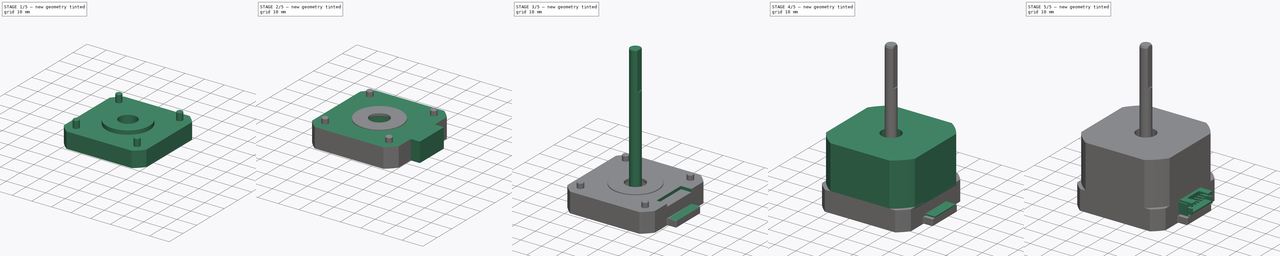
[diagram: build sequence overview — one tinted view per stage of 5, left to right]
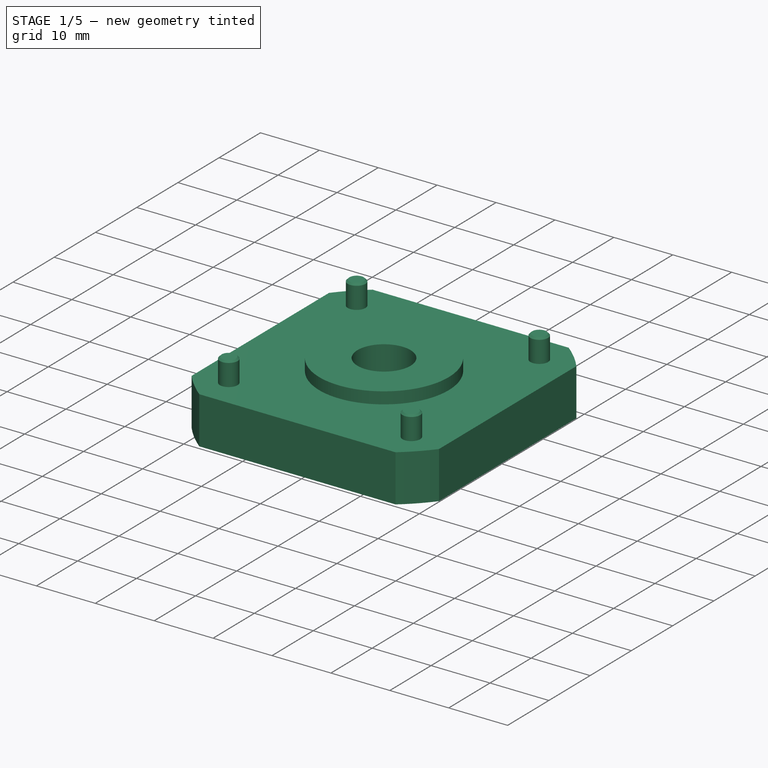
[diagram: stage 1 of 5 — iso view after this stage's code; geometry added in this stage tinted green]
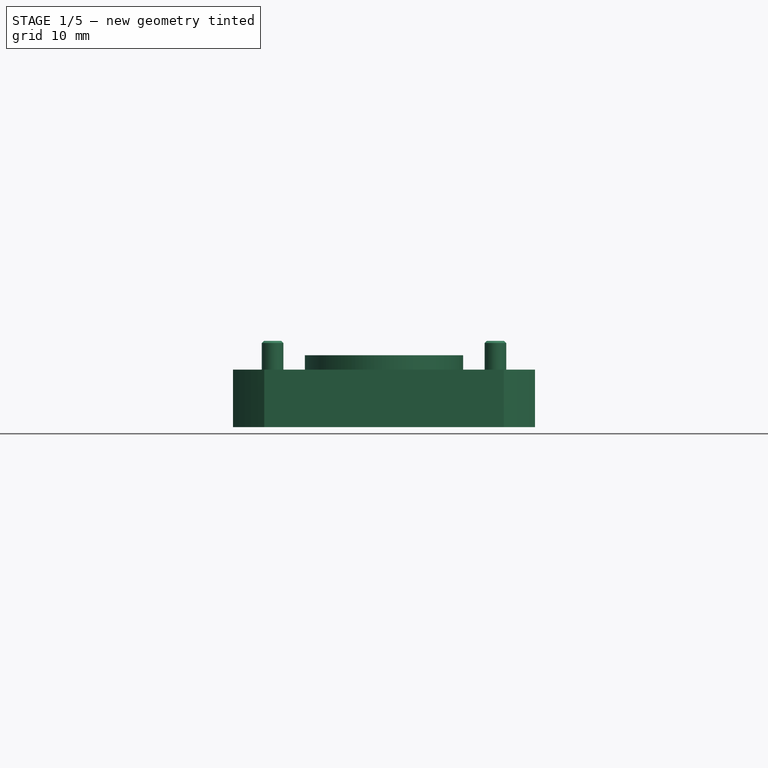
[diagram: stage 1 of 5 — front view after this stage's code; geometry added in this stage tinted green]
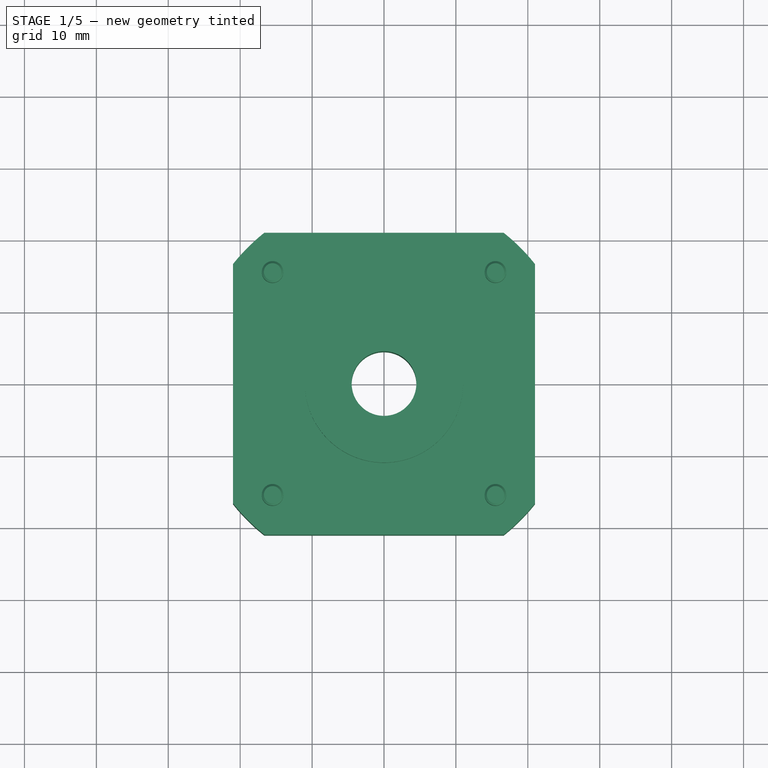
[diagram: stage 1 of 5 — top view after this stage's code; geometry added in this stage tinted green]
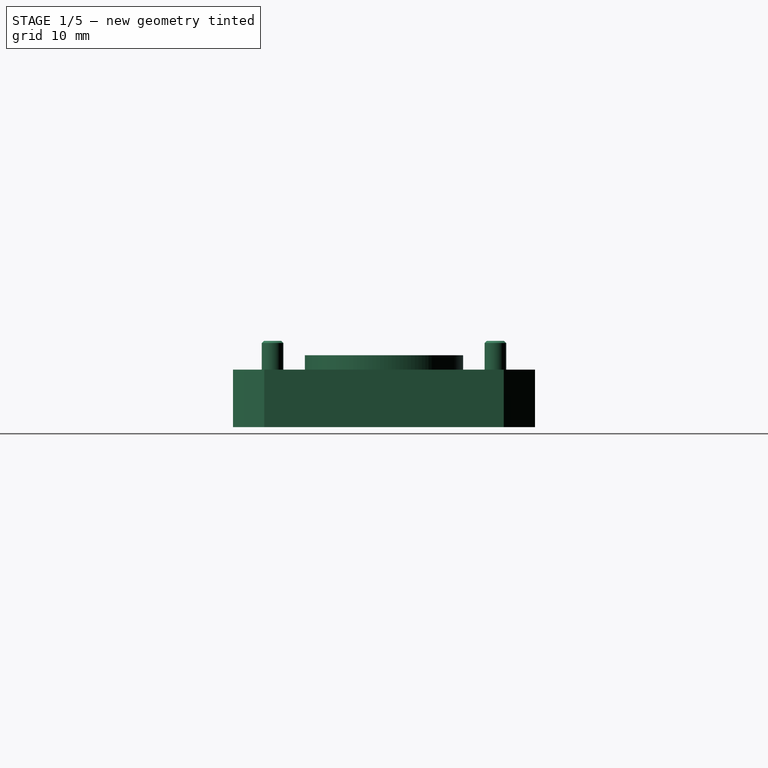
[diagram: stage 1 of 5 — right view after this stage's code; geometry added in this stage tinted green]
FCSTD DOCUMENT  (FreeCAD 1.1R41365 (Git))
Label: StepperMotorNema17
License: All rights reserved
LicenseURL: http://en.wikipedia.org/wiki/All_rights_reserved
objects: Sketcher::SketchObject×18, PartDesign::Pad×10, App::Point×8, PartDesign::Body×7, PartDesign::Pocket×5, PartDesign::Chamfer×4, Part::FeaturePython×4, PartDesign::Fillet×3, PartDesign::Revolution×2, PartDesign::LinearPattern×1, App::Part×1
note: 121 computed .brp shape members not serialized (recipe doc carries the construction recipe); baked Part::Feature solids carry a one-line shape summary decoded from their .brp

FEATURE [PartDesign::Body] Body004  label="stator"
  AllowCompound = false
  Group = -> [Sketch014,Pad007,LinearPattern]
  Origin = -> Origin005
  Placement = pos=(0,0,9.4) rot=(0,0,1;0rad)
  Tip = -> LinearPattern
FEATURE [Sketcher::SketchObject] Sketch015  label="basic outline002"
  ArcFitTolerance = 0
  AttachmentSupport = -> [XY_Plane006]
  ExternalTypes = [0]
  FullyConstrained = true
  MakeInternals = false
  MapMode = 5
  sketch-geometry (13):
    g0: ArcOfCircle CenterX=0 CenterY=0 CenterZ=0 NormalX=0 NormalY=0 NormalZ=1 AngleXU=0 Radius=26.8 StartAngle=2.24118 EndAngle=2.47121
    g1: ArcOfCircle CenterX=0 CenterY=0 CenterZ=0 NormalX=0 NormalY=0 NormalZ=1 AngleXU=0 Radius=26.8 StartAngle=5.38277 EndAngle=5.6128
    g2: ArcOfCircle CenterX=0 CenterY=0 CenterZ=0 NormalX=0 NormalY=0 NormalZ=1 AngleXU=0 Radius=26.8 StartAngle=0.670386 EndAngle=0.900411
    g3: ArcOfCircle CenterX=0 CenterY=0 CenterZ=0 NormalX=0 NormalY=0 NormalZ=1 AngleXU=0 Radius=26.8 StartAngle=3.81198 EndAngle=4.042
    g4: LineSegment StartX=-16.6505 StartY=21 StartZ=0 EndX=16.6505 EndY=21 EndZ=0
    g5: LineSegment StartX=21 StartY=16.6505 StartZ=0 EndX=21 EndY=-16.6505 EndZ=0
    g6: LineSegment StartX=-16.6505 StartY=-21 StartZ=0 EndX=16.6505 EndY=-21 EndZ=0
    g7: LineSegment StartX=-21 StartY=16.6505 StartZ=0 EndX=-21 EndY=-16.6505 EndZ=0
    g8: Circle CenterX=0 CenterY=0 CenterZ=0 NormalX=0 NormalY=0 NormalZ=1 AngleXU=0 Radius=4.5
    g9: Circle CenterX=-15.5 CenterY=15.5 CenterZ=0 NormalX=0 NormalY=0 NormalZ=1 AngleXU=0 Radius=1.5
    g10: Circle CenterX=15.5 CenterY=15.5 CenterZ=0 NormalX=0 NormalY=0 NormalZ=1 AngleXU=0 Radius=1.5
    g11: Circle CenterX=15.5 CenterY=-15.5 CenterZ=0 NormalX=0 NormalY=0 NormalZ=1 AngleXU=0 Radius=1.5
    g12: Circle CenterX=-15.5 CenterY=-15.5 CenterZ=0 NormalX=0 NormalY=0 NormalZ=1 AngleXU=0 Radius=1.5
  constraints (38):
    c: Coincident(g0,g-1)
    c: Coincident(g1,g0)
    c: Coincident(g2,g0)
    c: Coincident(g3,g0)
    c: Equal(g0,g1)
    c: Equal(g1,g2)
    c: Equal(g2,g3)
    c: Radius(g0) = 26.8
    c: Coincident(g4,g0)
    c: Coincident(g4,g2)
    c: Horizontal(g4)
    c: Coincident(g5,g2)
    c: Coincident(g5,g1)
    c: Vertical(g5)
    c: Coincident(g6,g3)
    c: Coincident(g6,g1)
    c: Coincident(g7,g0)
    c: Coincident(g7,g3)
    c: Vertical(g7)
    c: Horizontal(g6)
    c: DistanceX(g0,g2) = 42
    c: DistanceY(g1,g2) = 42
    c: DistanceY(g0,g2) = 21
    c: DistanceX(g0,g0) = 21
    c: Coincident(g8,g0)
    c: Diameter(g8) = 9
    c: Vertical(g9,g12)
    c: Vertical(g11,g10)
    c: Horizontal(g9,g10)
    c: Horizontal(g12,g11)
    c: Equal(g9,g10)
    c: Equal(g11,g10)
    c: Equal(g11,g12)
    c: Diameter(g9) = 3
    c: DistanceX(g9,g10) = 31
    c: DistanceY(g11,g10) = 31
    c: DistanceY(g0,g10) = 15.5
    c: DistanceX(g0,g10) = 15.5
FEATURE [PartDesign::Pad] Pad008
  Direction = (0,0,1)
  Length = 8
  Length2 = 10
  Profile = -> Sketch015
  ReferenceAxis = -> Sketch015 [N_Axis]
  Suppressed = false
  Type = 0
FEATURE [Sketcher::SketchObject] Sketch016
  ArcFitTolerance = 0
  AttachmentSupport = -> [Pad008]
  ExternalTypes = [0]
  FullyConstrained = true
  MakeInternals = false
  MapMode = 5
  Placement = pos=(0,0,8) rot=(0,0,1;0rad)
  sketch-geometry (2):
    g0: Circle CenterX=0 CenterY=0 CenterZ=0 NormalX=0 NormalY=0 NormalZ=1 AngleXU=0 Radius=4.5
    g1: Circle CenterX=0 CenterY=0 CenterZ=0 NormalX=0 NormalY=0 NormalZ=1 AngleXU=0 Radius=11
  constraints (4):
    c: Coincident(g0,g-1)
    c: Coincident(g1,g0)
    c: Diameter(g1) = 22
    c: Diameter(g0) = 9
FEATURE [PartDesign::Pad] Pad009  label="locating boss"
  BaseFeature = -> Pad008
  Direction = (0,0,1)
  Length = 2
  Length2 = 10
  Profile = -> Sketch016
  ReferenceAxis = -> Sketch016 [N_Axis]
  Suppressed = false
  Type = 0
FEATURE [PartDesign::Body] Body005  label="front end cap"
  AllowCompound = false
  Group = -> [Sketch015,Pad008,Sketch016,Pad009,Sketch017,Pocket004,Chamfer003,Fillet002]
  Origin = -> Origin006
  Placement = pos=(0,0,39.4) rot=(0,0,1;0rad)
  Tip = -> Fillet002
FEATURE [Part::FeaturePython] Screw  label="M3x10-Screw"  # Fasteners workbench fastener (typed FeaturePython)
  Placement = pos=(15.5,15.5,2) rot=(0,1,0;3.14159rad)
  diameter = 1
  invert = false
  leftHanded = false
  length = 2
  lengthCustom = 10
  matchOuter = false
  offset = 0
  thread = false
  type = 54
FEATURE [Part::FeaturePython] Screw001  label="M3x10-Screw004"  # Fasteners workbench fastener (typed FeaturePython)
  Placement = pos=(15.5,-15.5,2) rot=(0,1,0;3.14159rad)
  diameter = 1
  invert = false
  leftHanded = false
  length = 2
  lengthCustom = 10
  matchOuter = false
  offset = 0
  thread = false
  type = 54
FEATURE [Part::FeaturePython] Screw002  label="M3x10-Screw005"  # Fasteners workbench fastener (typed FeaturePython)
  Placement = pos=(-15.5,15.5,2) rot=(0,1,0;3.14159rad)
  diameter = 1
  invert = false
  leftHanded = false
  length = 2
  lengthCustom = 10
  matchOuter = false
  offset = 0
  thread = false
  type = 54
FEATURE [Part::FeaturePython] Screw003  label="M3x10-Screw006"  # Fasteners workbench fastener (typed FeaturePython)
  Placement = pos=(-15.5,-15.5,2) rot=(0,1,0;3.14159rad)
  diameter = 1
  invert = false
  leftHanded = false
  length = 2
  lengthCustom = 10
  matchOuter = false
  offset = 0
  thread = false
  type = 54
FEATURE [App::Part] Part  label="StepperMotorNema17"
  Group = -> [Body,Sketch001,Body001,Body002,Body003,Body004,Body005,Body006,Screw,Screw001,Screw002,Screw003]
  Origin = -> Origin001
FEATURE [App::Point] Origin008  label="Origin"
  Role = Origin
FEATURE [App::Point] Origin009  label="Origin"
  Role = Origin
FEATURE [App::Point] Origin010  label="Origin"
  Role = Origin
FEATURE [App::Point] Origin011  label="Origin"
  Role = Origin
FEATURE [App::Point] Origin012  label="Origin"
  Role = Origin
FEATURE [App::Point] Origin013  label="Origin"
  Role = Origin
FEATURE [App::Point] Origin014  label="Origin"
  Role = Origin
FEATURE [App::Point] Origin015  label="Origin"
  Role = Origin
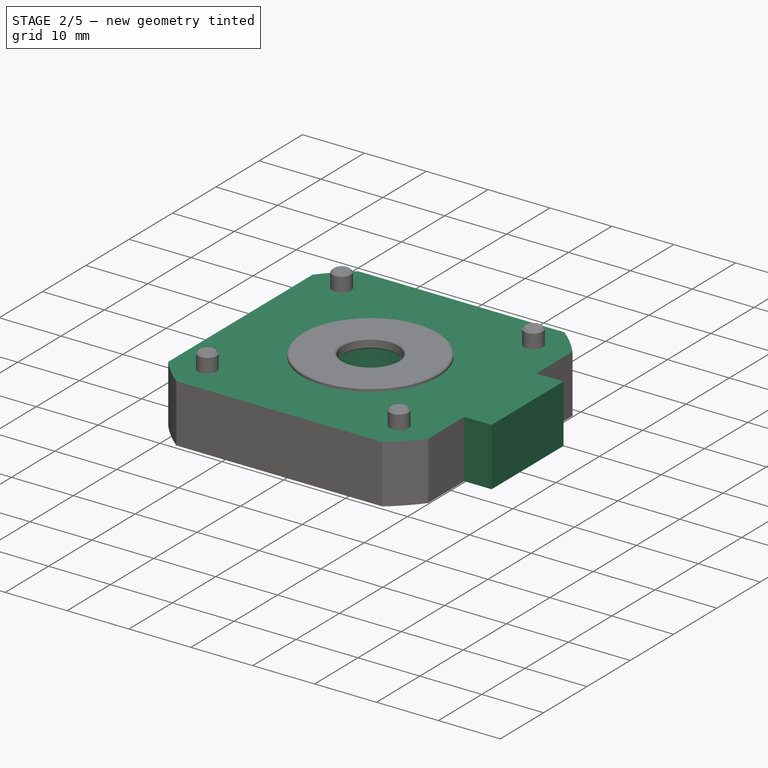
[diagram: stage 2 of 5 — iso view after this stage's code; geometry added in this stage tinted green]
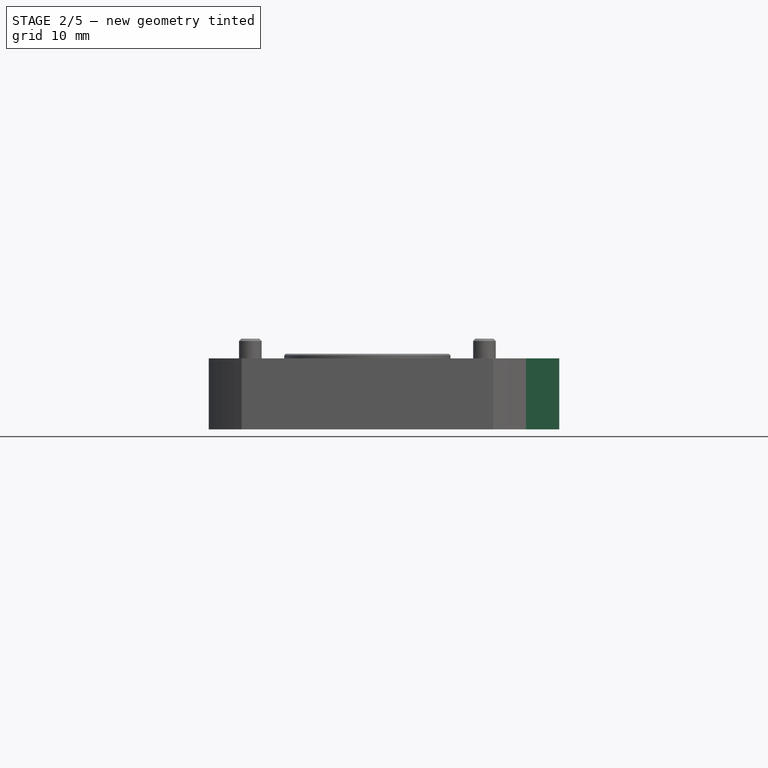
[diagram: stage 2 of 5 — front view after this stage's code; geometry added in this stage tinted green]
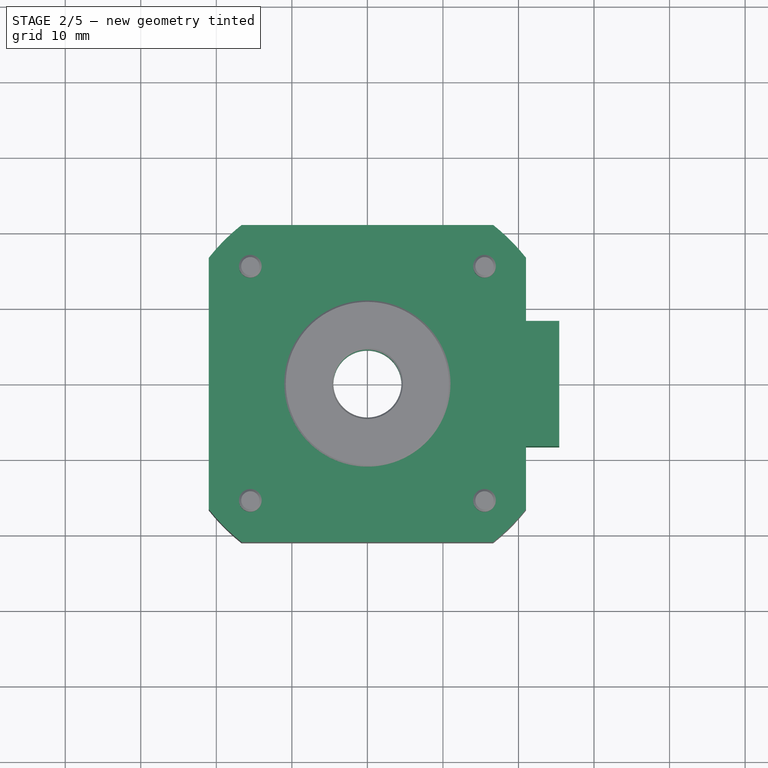
[diagram: stage 2 of 5 — top view after this stage's code; geometry added in this stage tinted green]
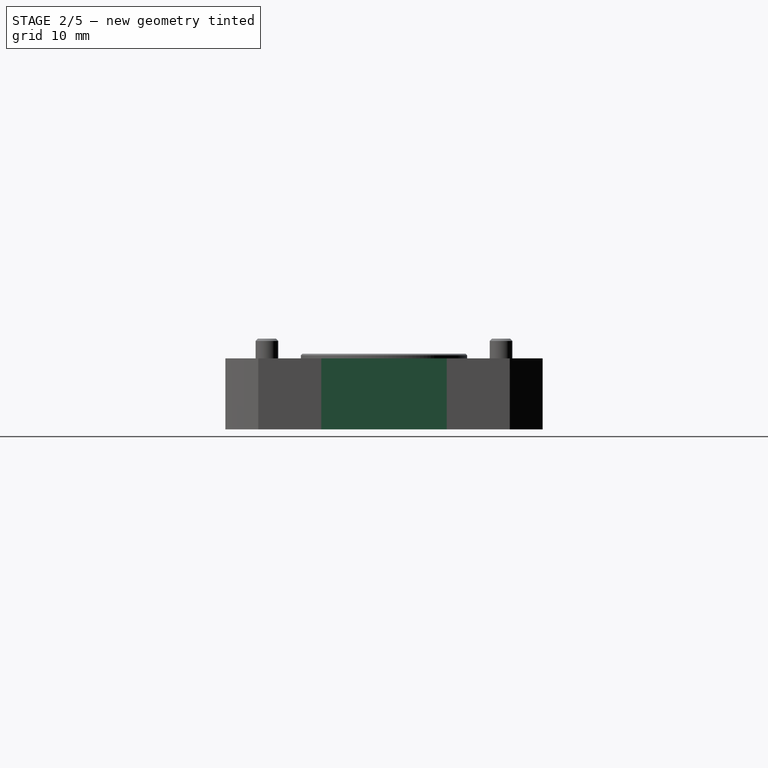
[diagram: stage 2 of 5 — right view after this stage's code; geometry added in this stage tinted green]
FEATURE [Sketcher::SketchObject] Sketch  label=" rear outline"
  ArcFitTolerance = 0
  AttachmentSupport = -> [XY_Plane]
  ExternalTypes = [0]
  FullyConstrained = true
  MakeInternals = false
  MapMode = 5
  sketch-geometry (17):
    g0: ArcOfCircle CenterX=0 CenterY=0 CenterZ=0 NormalX=0 NormalY=0 NormalZ=1 AngleXU=0 Radius=26.8 StartAngle=2.24118 EndAngle=2.47121
    g1: ArcOfCircle CenterX=0 CenterY=0 CenterZ=0 NormalX=0 NormalY=0 NormalZ=1 AngleXU=0 Radius=26.8 StartAngle=5.38277 EndAngle=5.6128
    g2: ArcOfCircle CenterX=0 CenterY=0 CenterZ=0 NormalX=0 NormalY=0 NormalZ=1 AngleXU=0 Radius=26.8 StartAngle=0.670386 EndAngle=0.900411
    g3: ArcOfCircle CenterX=0 CenterY=0 CenterZ=0 NormalX=0 NormalY=0 NormalZ=1 AngleXU=0 Radius=26.8 StartAngle=3.81198 EndAngle=4.042
    g4: LineSegment StartX=-16.6505 StartY=21 StartZ=0 EndX=16.6505 EndY=21 EndZ=0
    g5: LineSegment StartX=21 StartY=16.6505 StartZ=0 EndX=21 EndY=8.3 EndZ=0
    g6: LineSegment StartX=-16.6505 StartY=-21 StartZ=0 EndX=16.6505 EndY=-21 EndZ=0
    g7: LineSegment StartX=-21 StartY=16.6505 StartZ=0 EndX=-21 EndY=-16.6505 EndZ=0
    g8: Circle CenterX=0 CenterY=0 CenterZ=0 NormalX=0 NormalY=0 NormalZ=1 AngleXU=0 Radius=4.5
    g9: Circle CenterX=-15.5 CenterY=15.5 CenterZ=0 NormalX=0 NormalY=0 NormalZ=1 AngleXU=0 Radius=1.5
    g10: Circle CenterX=15.5 CenterY=15.5 CenterZ=0 NormalX=0 NormalY=0 NormalZ=1 AngleXU=0 Radius=1.5
    g11: Circle CenterX=15.5 CenterY=-15.5 CenterZ=0 NormalX=0 NormalY=0 NormalZ=1 AngleXU=0 Radius=1.5
    g12: Circle CenterX=-15.5 CenterY=-15.5 CenterZ=0 NormalX=0 NormalY=0 NormalZ=1 AngleXU=0 Radius=1.5
    g13: LineSegment StartX=21 StartY=8.3 StartZ=0 EndX=25.4 EndY=8.3 EndZ=0
    g14: LineSegment StartX=25.4 StartY=8.3 StartZ=0 EndX=25.4 EndY=-8.3 EndZ=0
    g15: LineSegment StartX=25.4 StartY=-8.3 StartZ=0 EndX=21 EndY=-8.3 EndZ=0
    g16: LineSegment StartX=21 StartY=-8.3 StartZ=0 EndX=21 EndY=-16.6505 EndZ=0
  constraints (50):
    c: Coincident(g0,g-1)
    c: Coincident(g1,g0)
    c: Coincident(g2,g0)
    c: Coincident(g3,g0)
    c: Equal(g0,g1)
    c: Equal(g1,g2)
    c: Equal(g2,g3)
    c: Radius(g0) = 26.8
    c: Coincident(g4,g0)
    c: Coincident(g4,g2)
    c: Horizontal(g4)
    c: Coincident(g5,g2)
    c: Coincident(g16,g1)
    c: Vertical(g5)
    c: Coincident(g6,g3)
    c: Coincident(g6,g1)
    c: Coincident(g7,g0)
    c: Coincident(g7,g3)
    c: Vertical(g7)
    c: Horizontal(g6)
    c: DistanceX(g0,g2) = 42
    c: DistanceY(g1,g2) = 42
    c: DistanceY(g0,g2) = 21
    c: DistanceX(g0,g0) = 21
    c: Coincident(g8,g0)
    c: Diameter(g8) = 9
    c: Vertical(g9,g12)
    c: Vertical(g11,g10)
    c: Horizontal(g9,g10)
    c: Horizontal(g12,g11)
    c: Equal(g9,g10)
    c: Equal(g11,g10)
    c: Equal(g11,g12)
    c: Diameter(g9) = 3
    c: DistanceX(g9,g10) = 31
    c: DistanceY(g11,g10) = 31
    c: DistanceY(g0,g10) = 15.5
    c: DistanceX(g0,g10) = 15.5
    c: Horizontal(g13)
    c: Coincident(g14,g13)
    c: Vertical(g14)
    c: Coincident(g15,g14)
    c: Horizontal(g15)
    c: DistanceY(g14,g14) = 16.6
    c: DistanceY(g0,g13) = 8.3
    c: DistanceX(g13,g13) = 4.4
    c: Coincident(g5,g13)
    c: Coincident(g16,g15)
    c: Vertical(g5,g15)
    c: Vertical(g16)
FEATURE [Sketcher::SketchObject] Sketch001  label="basic outline"
  ArcFitTolerance = 0
  AttachmentSupport = -> [XY_Plane001]
  ExternalTypes = [0]
  FullyConstrained = true
  MakeInternals = false
  MapMode = 5
  sketch-geometry (13):
    g0: ArcOfCircle CenterX=0 CenterY=0 CenterZ=0 NormalX=0 NormalY=0 NormalZ=1 AngleXU=0 Radius=26.8 StartAngle=2.24118 EndAngle=2.47121
    g1: ArcOfCircle CenterX=0 CenterY=0 CenterZ=0 NormalX=0 NormalY=0 NormalZ=1 AngleXU=0 Radius=26.8 StartAngle=5.38277 EndAngle=5.6128
    g2: ArcOfCircle CenterX=0 CenterY=0 CenterZ=0 NormalX=0 NormalY=0 NormalZ=1 AngleXU=0 Radius=26.8 StartAngle=0.670386 EndAngle=0.900411
    g3: ArcOfCircle CenterX=0 CenterY=0 CenterZ=0 NormalX=0 NormalY=0 NormalZ=1 AngleXU=0 Radius=26.8 StartAngle=3.81198 EndAngle=4.042
    g4: LineSegment StartX=-16.6505 StartY=21 StartZ=0 EndX=16.6505 EndY=21 EndZ=0
    g5: LineSegment StartX=21 StartY=16.6505 StartZ=0 EndX=21 EndY=-16.6505 EndZ=0
    g6: LineSegment StartX=-16.6505 StartY=-21 StartZ=0 EndX=16.6505 EndY=-21 EndZ=0
    g7: LineSegment StartX=-21 StartY=16.6505 StartZ=0 EndX=-21 EndY=-16.6505 EndZ=0
    g8: Circle CenterX=0 CenterY=0 CenterZ=0 NormalX=0 NormalY=0 NormalZ=1 AngleXU=0 Radius=4.5
    g9: Circle CenterX=-15.5 CenterY=15.5 CenterZ=0 NormalX=0 NormalY=0 NormalZ=1 AngleXU=0 Radius=1.5
    g10: Circle CenterX=15.5 CenterY=15.5 CenterZ=0 NormalX=0 NormalY=0 NormalZ=1 AngleXU=0 Radius=1.5
    g11: Circle CenterX=15.5 CenterY=-15.5 CenterZ=0 NormalX=0 NormalY=0 NormalZ=1 AngleXU=0 Radius=1.5
    g12: Circle CenterX=-15.5 CenterY=-15.5 CenterZ=0 NormalX=0 NormalY=0 NormalZ=1 AngleXU=0 Radius=1.5
  constraints (38):
    c: Coincident(g0,g-1)
    c: Coincident(g1,g0)
    c: Coincident(g2,g0)
    c: Coincident(g3,g0)
    c: Equal(g0,g1)
    c: Equal(g1,g2)
    c: Equal(g2,g3)
    c: Radius(g0) = 26.8
    c: Coincident(g4,g0)
    c: Coincident(g4,g2)
    c: Horizontal(g4)
    c: Coincident(g5,g2)
    c: Coincident(g5,g1)
    c: Vertical(g5)
    c: Coincident(g6,g3)
    c: Coincident(g6,g1)
    c: Coincident(g7,g0)
    c: Coincident(g7,g3)
    c: Vertical(g7)
    c: Horizontal(g6)
    c: DistanceX(g0,g2) = 42
    c: DistanceY(g1,g2) = 42
    c: DistanceY(g0,g2) = 21
    c: DistanceX(g0,g0) = 21
    c: Coincident(g8,g0)
    c: Diameter(g8) = 9
    c: Vertical(g9,g12)
    c: Vertical(g11,g10)
    c: Horizontal(g9,g10)
    c: Horizontal(g12,g11)
    c: Equal(g9,g10)
    c: Equal(g11,g10)
    c: Equal(g11,g12)
    c: Diameter(g9) = 3
    c: DistanceX(g9,g10) = 31
    c: DistanceY(g11,g10) = 31
    c: DistanceY(g0,g10) = 15.5
    c: DistanceX(g0,g10) = 15.5
FEATURE [PartDesign::Pad] Pad
  Direction = (0,0,1)
  Length = 9.4
  Length2 = 10
  Profile = -> Sketch
  ReferenceAxis = -> Sketch [N_Axis]
  Suppressed = false
  Type = 0
FEATURE [Sketcher::SketchObject] Sketch002
  ArcFitTolerance = 0
  AttachmentSupport = -> [XY_Plane]
  ExternalTypes = [0]
  FullyConstrained = true
  MakeInternals = false
  MapMode = 5
  sketch-geometry (4):
    g0: Circle CenterX=-15.5 CenterY=15.5 CenterZ=0 NormalX=0 NormalY=0 NormalZ=1 AngleXU=0 Radius=3.2
    g1: Circle CenterX=15.5 CenterY=15.5 CenterZ=0 NormalX=0 NormalY=0 NormalZ=1 AngleXU=0 Radius=3.2
    g2: Circle CenterX=15.5 CenterY=-15.5 CenterZ=0 NormalX=0 NormalY=0 NormalZ=1 AngleXU=0 Radius=3.2
    g3: Circle CenterX=-15.5 CenterY=-15.5 CenterZ=0 NormalX=0 NormalY=0 NormalZ=1 AngleXU=0 Radius=3.2
  constraints (12):
    c: Equal(g0,g1)
    c: Equal(g1,g2)
    c: Equal(g2,g3)
    c: Horizontal(g0,g1)
    c: Horizontal(g3,g2)
    c: Vertical(g1,g2)
    c: Vertical(g0,g3)
    c: Diameter(g0) = 6.4
    c: DistanceY(g2,g1) = 31
    c: DistanceY(g2,g-1) = 15.5
    c: DistanceX(g0,g1) = 31
    c: DistanceX(g-1,g1) = 15.5
FEATURE [PartDesign::Pocket] Pocket  label="screw counterbore"
  BaseFeature = -> Pad
  Direction = (0,0,-1)
  Length = 3
  Length2 = 5
  Profile = -> Sketch002
  ReferenceAxis = -> Sketch002 [N_Axis]
  Reversed = true
  Suppressed = false
  Type = 0
FEATURE [Sketcher::SketchObject] Sketch003
  ArcFitTolerance = 0
  AttachmentOffset = pos=(0,0,10) rot=(0,0,1;0rad)
  AttachmentSupport = -> [XY_Plane]
  ExternalTypes = [0]
  FullyConstrained = true
  MakeInternals = false
  MapMode = 5
  Placement = pos=(0,0,10) rot=(0,0,1;0rad)
  sketch-geometry (1):
    g0: Circle CenterX=0 CenterY=0 CenterZ=0 NormalX=0 NormalY=0 NormalZ=1 AngleXU=0 Radius=8
  constraints (2):
    c: Coincident(g0,g-1)
    c: Diameter(g0) = 16
FEATURE [PartDesign::Pocket] Pocket001  label="bearing pocket"
  BaseFeature = -> Pocket
  Direction = (0,0,-1)
  Length = 8
  Length2 = 5
  Profile = -> Sketch003
  ReferenceAxis = -> Sketch003 [N_Axis]
  Suppressed = false
  Type = 0
FEATURE [Sketcher::SketchObject] Sketch017
  ArcFitTolerance = 0
  AttachmentSupport = -> [XY_Plane006]
  ExternalTypes = [0]
  FullyConstrained = true
  MakeInternals = false
  MapMode = 5
  sketch-geometry (1):
    g0: Circle CenterX=0 CenterY=0 CenterZ=0 NormalX=0 NormalY=0 NormalZ=1 AngleXU=0 Radius=8
  constraints (2):
    c: Coincident(g0,g-1)
    c: Diameter(g0) = 16
FEATURE [PartDesign::Pocket] Pocket004
  BaseFeature = -> Pad009
  Direction = (0,0,-1)
  Length = 8.4
  Length2 = 5
  Profile = -> Sketch017
  ReferenceAxis = -> Sketch017 [N_Axis]
  Reversed = true
  Suppressed = false
  Type = 0
FEATURE [PartDesign::Body] Body003  label="shaft"
  AllowCompound = false
  Group = -> [Sketch012,Pad006,Sketch013,Pocket003,Chamfer002]
  Origin = -> Origin004
  Placement = pos=(0,0,2.8) rot=(0,0,1;0rad)
  Tip = -> Chamfer002
FEATURE [PartDesign::Chamfer] Chamfer003
  Angle = 45
  Base = -> Pocket004 [Edge42,Edge30,Edge28,Edge26,Edge27,Edge44,Edge43]
  BaseFeature = -> Pocket004
  ChamferType = 0
  FlipDirection = false
  Size = 0.2
  Size2 = 1
  SupportTransform = false
  Suppressed = false
  UseAllEdges = false
FEATURE [PartDesign::Body] Body  label="rear end cap"
  AllowCompound = false
  Group = -> [Sketch,Pad,Sketch002,Pocket,Sketch003,Pocket001,Sketch004,Pocket002,Fillet,Fillet001]
  Origin = -> Origin
  Tip = -> Fillet001
FEATURE [PartDesign::Fillet] Fillet002
  Base = -> Chamfer003 [Edge17,Edge16,Edge19,Edge23,Edge29,Edge27,Edge25,Edge21]
  BaseFeature = -> Chamfer003
  Radius = 0.4
  SupportTransform = false
  Suppressed = false
  UseAllEdges = false
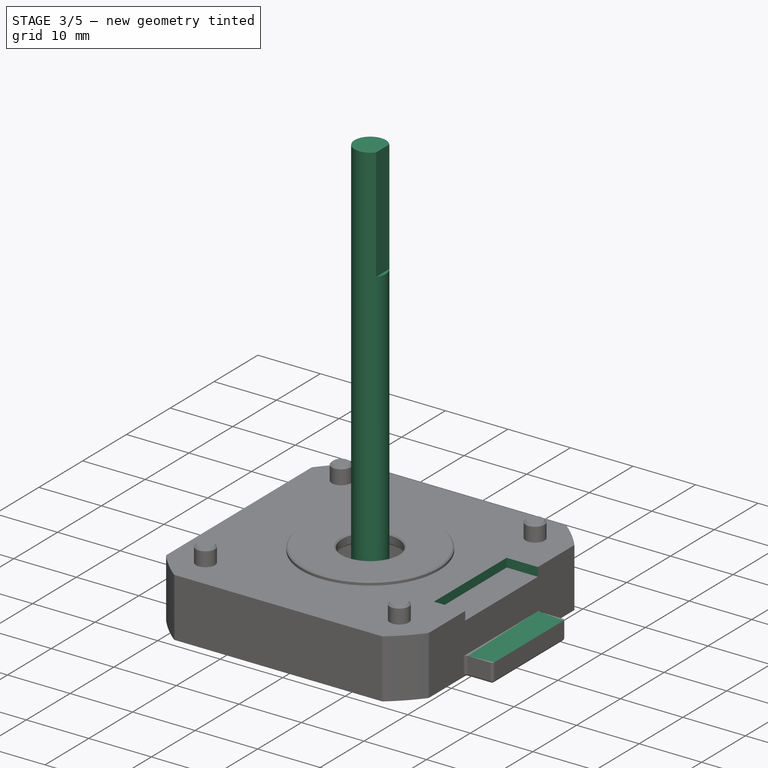
[diagram: stage 3 of 5 — iso view after this stage's code; geometry added in this stage tinted green]
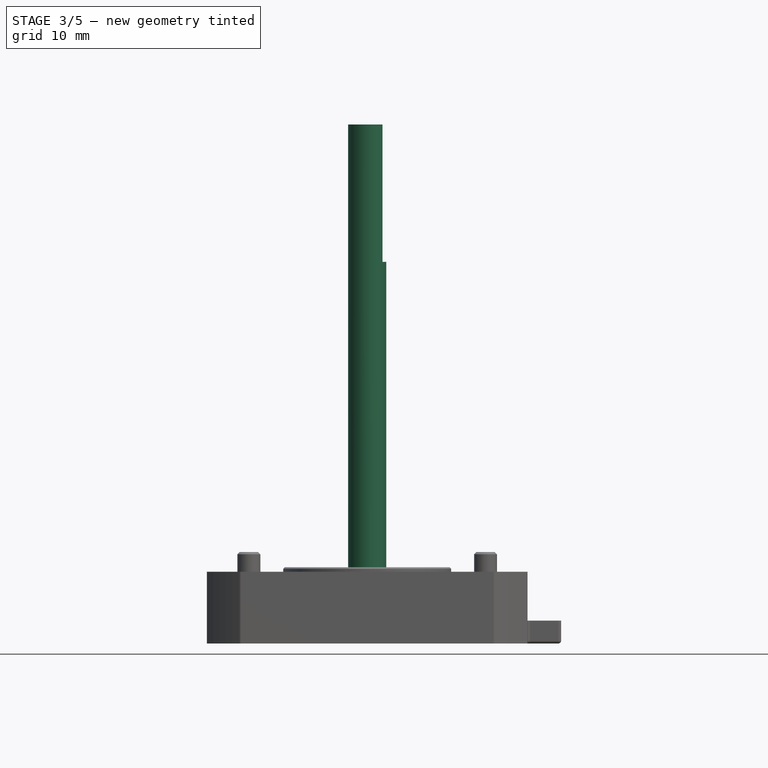
[diagram: stage 3 of 5 — front view after this stage's code; geometry added in this stage tinted green]
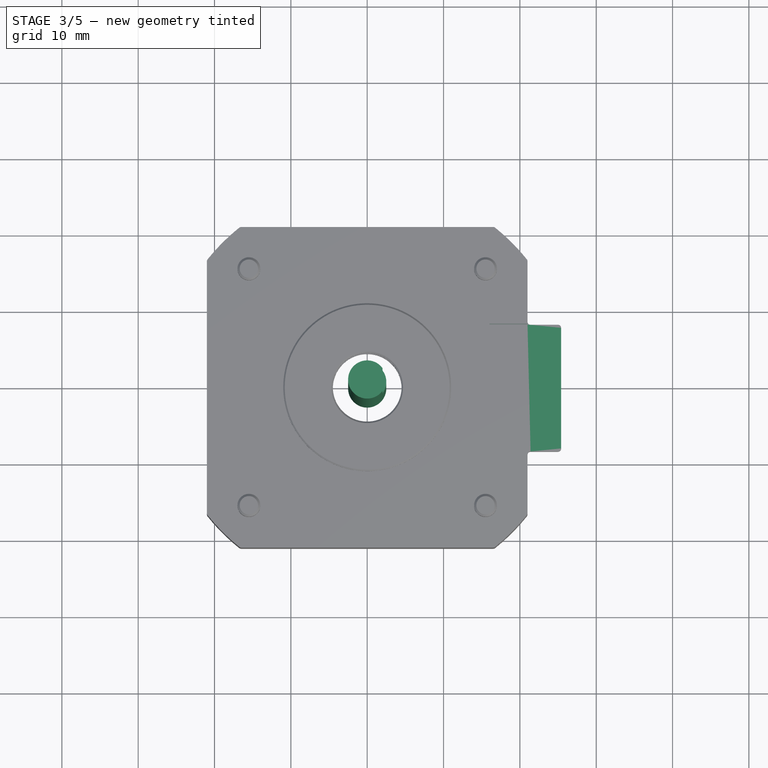
[diagram: stage 3 of 5 — top view after this stage's code; geometry added in this stage tinted green]
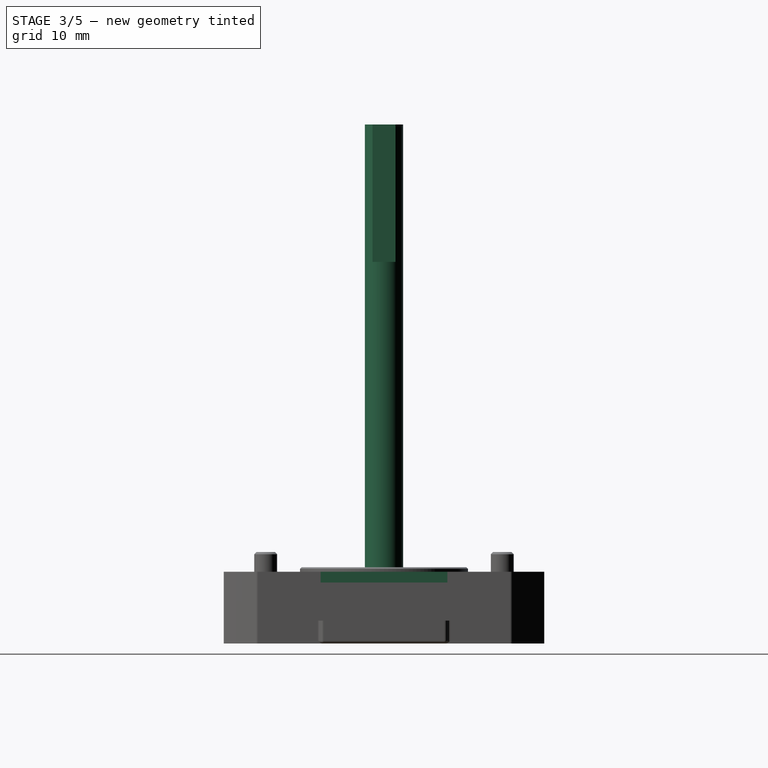
[diagram: stage 3 of 5 — right view after this stage's code; geometry added in this stage tinted green]
FEATURE [Sketcher::SketchObject] Sketch004
  ArcFitTolerance = 0
  AttachmentOffset = pos=(0,0,26) rot=(0,0,1;0rad)
  AttachmentSupport = -> [YZ_Plane]
  ExternalTypes = [0]
  FullyConstrained = true
  MakeInternals = false
  MapMode = 5
  Placement = pos=(26,0,0) rot=(0.57735,0.57735,0.57735;2.0944rad)
  sketch-geometry (4):
    g0: LineSegment StartX=-8.3 StartY=9.4 StartZ=0 EndX=8.3 EndY=9.4 EndZ=0
    g1: LineSegment StartX=8.3 StartY=9.4 StartZ=0 EndX=8.3 EndY=3 EndZ=0
    g2: LineSegment StartX=8.3 StartY=3 StartZ=0 EndX=-8.3 EndY=3 EndZ=0
    g3: LineSegment StartX=-8.3 StartY=3 StartZ=0 EndX=-8.3 EndY=9.4 EndZ=0
  constraints (12):
    c: Coincident(g0,g1)
    c: Coincident(g1,g2)
    c: Coincident(g2,g3)
    c: Coincident(g3,g0)
    c: Horizontal(g0)
    c: Horizontal(g2)
    c: Vertical(g1)
    c: Vertical(g3)
    c: DistanceX(g0,g0) = 16.6
    c: DistanceX(g-1,g0) = 8.3
    c: DistanceY(g-1,g0) = 9.4
    c: DistanceY(g-1,g1) = 3
FEATURE [PartDesign::Pocket] Pocket002
  BaseFeature = -> Pocket001
  Direction = (-1,0,0)
  Length = 10
  Length2 = 5
  Profile = -> Sketch004
  ReferenceAxis = -> Sketch004 [N_Axis]
  Suppressed = false
  Type = 0
FEATURE [PartDesign::Body] Body002  label="connector"
  AllowCompound = false
  Group = -> [Sketch006,Pad001,Sketch007,Pad002,Sketch008,Pad003,Sketch009,Pad004,Sketch010,Pad005]
  Origin = -> Origin003
  Tip = -> Pad005
FEATURE [Sketcher::SketchObject] Sketch012
  ArcFitTolerance = 0
  AttachmentSupport = -> [XY_Plane004]
  ExternalTypes = [0]
  FullyConstrained = true
  MakeInternals = false
  MapMode = 5
  sketch-geometry (1):
    g0: Circle CenterX=0 CenterY=0 CenterZ=0 NormalX=0 NormalY=0 NormalZ=1 AngleXU=0 Radius=2.5
  constraints (2):
    c: Coincident(g0,g-1)
    c: Diameter(g0) = 5
FEATURE [PartDesign::Pad] Pad006
  Direction = (0,0,1)
  Length = 68
  Length2 = 10
  Profile = -> Sketch012
  ReferenceAxis = -> Sketch012 [N_Axis]
  Suppressed = false
  Type = 0
FEATURE [Sketcher::SketchObject] Sketch013
  ArcFitTolerance = 0
  AttachmentSupport = -> [Pad006]
  ExternalTypes = [0]
  FullyConstrained = true
  MakeInternals = false
  MapMode = 5
  Placement = pos=(0,0,68) rot=(0,0,1;0rad)
  sketch-geometry (2):
    g0: ArcOfCircle CenterX=0 CenterY=0 CenterZ=0 NormalX=0 NormalY=0 NormalZ=1 AngleXU=0 Radius=2.5 StartAngle=5.63968 EndAngle=6.92669
    g1: LineSegment StartX=2 StartY=1.5 StartZ=0 EndX=2 EndY=-1.5 EndZ=0
  constraints (6):
    c: Coincident(g0,g-1)
    c: Coincident(g1,g0)
    c: Coincident(g1,g0)
    c: Vertical(g1)
    c: Diameter(g0) = 5
    c: DistanceX(g0,g0) = 2
FEATURE [PartDesign::Pocket] Pocket003
  BaseFeature = -> Pad006
  Direction = (0,0,-1)
  Length = 18
  Length2 = 5
  Profile = -> Sketch013
  ReferenceAxis = -> Sketch013 [N_Axis]
  Suppressed = false
  Type = 0
FEATURE [PartDesign::Fillet] Fillet
  Base = -> Pocket002 [Edge48,Edge5,Edge40,Edge45,Edge52,Edge53,Edge50,Edge47,Edge44,Edge9,Edge2,Edge1,Edge24,Edge21,Edge22,Edge25]
  BaseFeature = -> Pocket002
  Radius = 0.4
  SupportTransform = false
  Suppressed = false
  UseAllEdges = false
FEATURE [PartDesign::Fillet] Fillet001
  Base = -> Fillet [Edge27]
  BaseFeature = -> Fillet
  Radius = 0.4
  SupportTransform = false
  Suppressed = false
  UseAllEdges = false
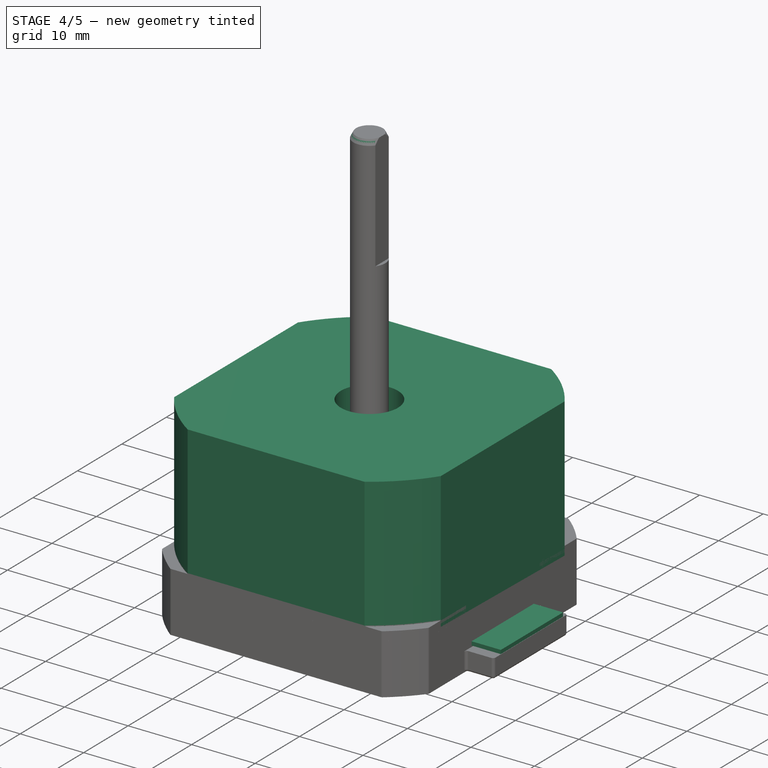
[diagram: stage 4 of 5 — iso view after this stage's code; geometry added in this stage tinted green]
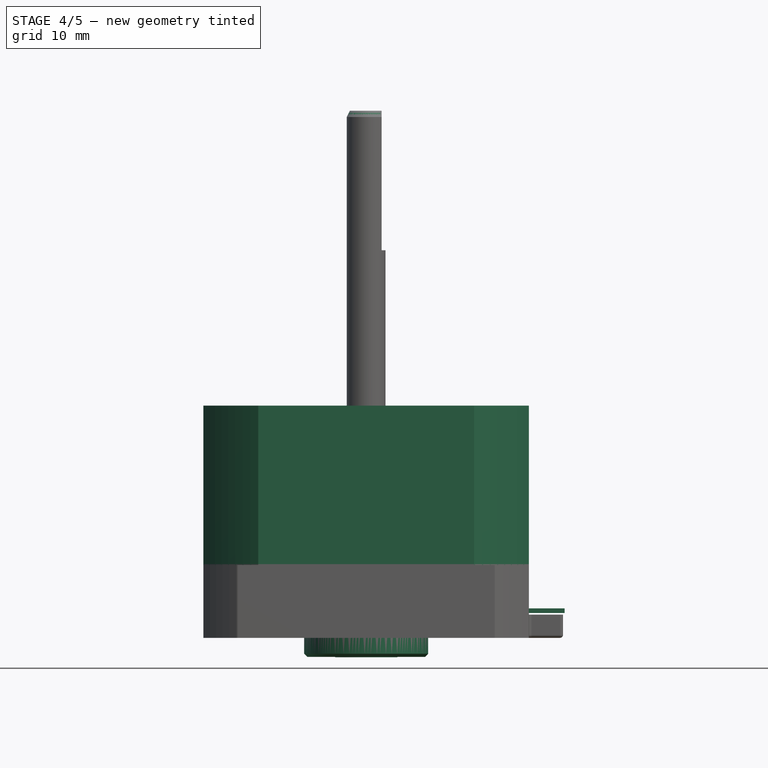
[diagram: stage 4 of 5 — front view after this stage's code; geometry added in this stage tinted green]
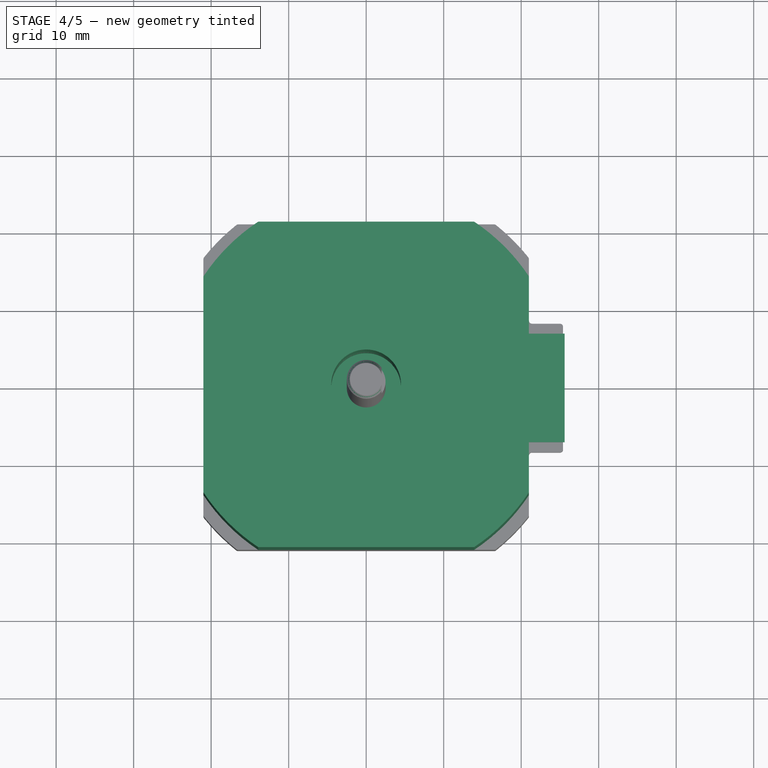
[diagram: stage 4 of 5 — top view after this stage's code; geometry added in this stage tinted green]
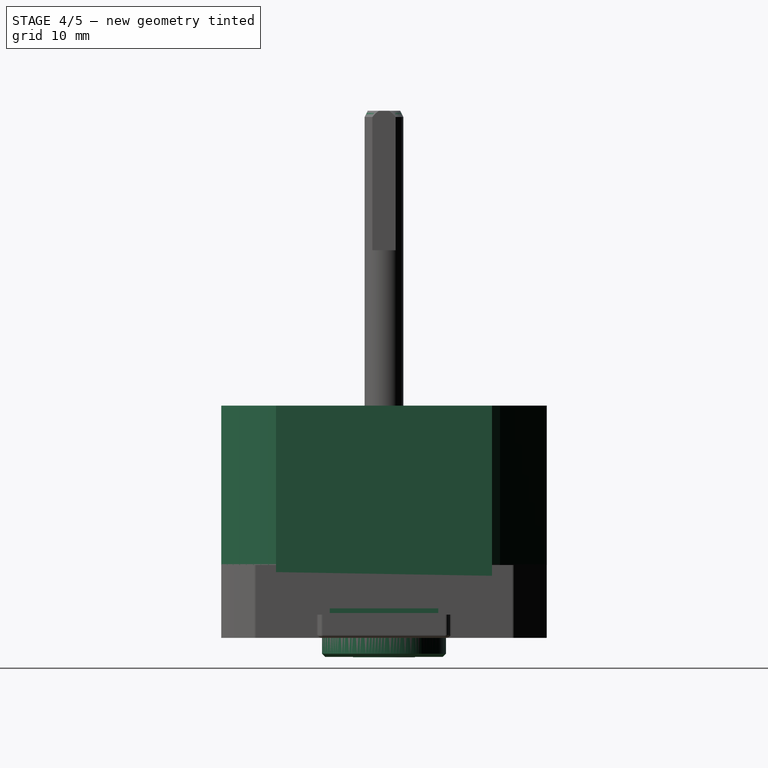
[diagram: stage 4 of 5 — right view after this stage's code; geometry added in this stage tinted green]
FEATURE [PartDesign::Body] Body001  label="rear bearing"
  AllowCompound = false
  Group = -> [Sketch005,Revolution,Chamfer]
  Origin = -> Origin002
  Placement = pos=(0,0,6.6) rot=(0,0,1;0rad)
  Tip = -> Chamfer
FEATURE [Sketcher::SketchObject] Sketch006
  ArcFitTolerance = 0
  AttachmentOffset = pos=(0,0,16) rot=(0,0,1;0rad)
  AttachmentSupport = -> [YZ_Plane003]
  ExternalTypes = [0]
  FullyConstrained = true
  MakeInternals = false
  MapMode = 5
  Placement = pos=(16,0,0) rot=(0.57735,0.57735,0.57735;2.0944rad)
  sketch-geometry (4):
    g0: LineSegment StartX=-7 StartY=3.8 StartZ=0 EndX=7 EndY=3.8 EndZ=0
    g1: LineSegment StartX=7 StartY=3.8 StartZ=0 EndX=7 EndY=3.2 EndZ=0
    g2: LineSegment StartX=7 StartY=3.2 StartZ=0 EndX=-7 EndY=3.2 EndZ=0
    g3: LineSegment StartX=-7 StartY=3.2 StartZ=0 EndX=-7 EndY=3.8 EndZ=0
  constraints (12):
    c: Coincident(g0,g1)
    c: Coincident(g1,g2)
    c: Coincident(g2,g3)
    c: Coincident(g3,g0)
    c: Horizontal(g0)
    c: Horizontal(g2)
    c: Vertical(g1)
    c: Vertical(g3)
    c: DistanceY(g1,g1) = 0.6
    c: DistanceX(g0,g0) = 14
    c: DistanceX(g-1,g0) = 7
    c: DistanceY(g-1,g1) = 3.2
FEATURE [PartDesign::Pad] Pad001  label="PCB"
  Direction = (1,0,0)
  Length = 9.6
  Length2 = 10
  Placement = pos=(0,0,0) rot=(1,1,1;2.0944rad)
  Profile = -> Sketch006
  ReferenceAxis = -> Sketch006 [N_Axis]
  Suppressed = false
  Type = 0
FEATURE [Sketcher::SketchObject] Sketch014  label="basic outline001"
  ArcFitTolerance = 0
  AttachmentSupport = -> [XY_Plane005]
  ExternalTypes = [0]
  FullyConstrained = true
  MakeInternals = false
  MapMode = 5
  sketch-geometry (9):
    g0: ArcOfCircle CenterX=0 CenterY=0 CenterZ=0 NormalX=0 NormalY=0 NormalZ=1 AngleXU=0 Radius=25.2 StartAngle=2.15648 EndAngle=2.55591
    g1: ArcOfCircle CenterX=0 CenterY=0 CenterZ=0 NormalX=0 NormalY=0 NormalZ=1 AngleXU=0 Radius=25.2 StartAngle=5.29807 EndAngle=5.6975
    g2: ArcOfCircle CenterX=0 CenterY=0 CenterZ=0 NormalX=0 NormalY=0 NormalZ=1 AngleXU=0 Radius=25.2 StartAngle=0.585686 EndAngle=0.985111
    g3: ArcOfCircle CenterX=0 CenterY=0 CenterZ=0 NormalX=0 NormalY=0 NormalZ=1 AngleXU=0 Radius=25.2 StartAngle=3.72728 EndAngle=4.1267
    g4: LineSegment StartX=-13.9298 StartY=21 StartZ=0 EndX=13.9298 EndY=21 EndZ=0
    g5: LineSegment StartX=21 StartY=13.9298 StartZ=0 EndX=21 EndY=-13.9298 EndZ=0
    g6: LineSegment StartX=-13.9298 StartY=-21 StartZ=0 EndX=13.9298 EndY=-21 EndZ=0
    g7: LineSegment StartX=-21 StartY=13.9298 StartZ=0 EndX=-21 EndY=-13.9298 EndZ=0
    g8: Circle CenterX=0 CenterY=0 CenterZ=0 NormalX=0 NormalY=0 NormalZ=1 AngleXU=0 Radius=4.5
  constraints (26):
    c: Coincident(g0,g-1)
    c: Coincident(g1,g0)
    c: Coincident(g2,g0)
    c: Coincident(g3,g0)
    c: Equal(g0,g1)
    c: Equal(g1,g2)
    c: Equal(g2,g3)
    c: Coincident(g4,g0)
    c: Coincident(g4,g2)
    c: Horizontal(g4)
    c: Coincident(g5,g2)
    c: Coincident(g5,g1)
    c: Vertical(g5)
    c: Coincident(g6,g3)
    c: Coincident(g6,g1)
    c: Coincident(g7,g0)
    c: Coincident(g7,g3)
    c: Vertical(g7)
    c: Horizontal(g6)
    c: DistanceX(g0,g2) = 42
    c: DistanceY(g1,g2) = 42
    c: DistanceY(g0,g2) = 21
    c: DistanceX(g0,g0) = 21
    c: Coincident(g8,g0)
    c: Diameter(g8) = 9
    c: Diameter(g0) = 50.4
FEATURE [PartDesign::Pad] Pad007  label="statorLamination"
  Direction = (0,0,1)
  Length = 0.52
  Length2 = 10
  Profile = -> Sketch014
  ReferenceAxis = -> Sketch014 [N_Axis]
  Suppressed = false
  Type = 0
FEATURE [PartDesign::LinearPattern] LinearPattern  label="stack"
  BaseFeature = -> Pad007
  Direction = -> Z_Axis005
  Length = 29.441
  Mode = 1
  Occurrences = 60
  Offset = 0.499
  Originals = -> [Pad007]
  Suppressed = false
  TransformMode = 0
FEATURE [Sketcher::SketchObject] Sketch018
  ArcFitTolerance = 0
  AttachmentSupport = -> [XZ_Plane007]
  ExternalTypes = [0]
  FullyConstrained = true
  MakeInternals = false
  MapMode = 5
  Placement = pos=(0,0,0) rot=(1,0,0;1.5708rad)
  sketch-geometry (12):
    g0: LineSegment StartX=2.5 StartY=2.55 StartZ=0 EndX=8 EndY=2.55 EndZ=0
    g1: LineSegment StartX=8 StartY=2.55 StartZ=0 EndX=8 EndY=-2.45 EndZ=0
    g2: LineSegment StartX=8 StartY=-2.45 StartZ=0 EndX=6.5 EndY=-2.45 EndZ=0
    g3: LineSegment StartX=2.5 StartY=-2.5 StartZ=0 EndX=2.5 EndY=2.55 EndZ=0
    g4: LineSegment StartX=4.2 StartY=-2.45 StartZ=0 EndX=4.1 EndY=-1.95 EndZ=0
    g5: LineSegment StartX=4.1 StartY=-1.95 StartZ=0 EndX=4 EndY=-2.5 EndZ=0
    g6: LineSegment StartX=5.2 StartY=-2.45 StartZ=0 EndX=6.13734 EndY=-1.97682 EndZ=0
    g7: LineSegment StartX=6.5 StartY=-2.2 StartZ=0 EndX=6.5 EndY=-2.45 EndZ=0
    g8: LineSegment StartX=4 StartY=-2.5 StartZ=0 EndX=2.5 EndY=-2.5 EndZ=0
    g9: LineSegment StartX=5.2 StartY=-2.45 StartZ=0 EndX=4.2 EndY=-2.45 EndZ=0
    g10: ArcOfCircle CenterX=6.25 CenterY=-2.2 CenterZ=0 NormalX=0 NormalY=0 NormalZ=1 AngleXU=0 Radius=0.25 StartAngle=2.03828 EndAngle=6.28319
    g11: LineSegment [constr] StartX=6.5 StartY=-2.45 StartZ=0 EndX=5.2 EndY=-2.45 EndZ=0
  constraints (34):
    c: Coincident(g0,g1)
    c: Coincident(g1,g2)
    c: Coincident(g8,g3)
    c: Coincident(g3,g0)
    c: Horizontal(g0)
    c: Horizontal(g2)
    c: Vertical(g1)
    c: Vertical(g3)
    c: Coincident(g5,g4)
    c: DistanceX(g-1,g8) = 2.5
    c: DistanceX(g-1,g1) = 8
    c: DistanceY(g1,g1) = 5
    c: DistanceY(g8,g-1) = 2.5
    c: Coincident(g9,g4)
    c: Coincident(g8,g5)
    c: Coincident(g9,g6)
    c: Coincident(g2,g7)
    c: Horizontal(g9)
    c: Horizontal(g8)
    c: Vertical(g7)
    c: Horizontal(g6,g2)
    c: DistanceX(g5,g4) = 0.2
    c: Coincident(g11,g2)
    c: Coincident(g11,g6)
    c: Diameter(g10) = 0.5
    c: DistanceX(g2,g2) = 1.5
    c: Tangent(g10,g11)
    c: DistanceX(g4,g4) = 0.1
    c: DistanceX(g8,g8) = 1.5
    c: DistanceX(g9,g9) = 1
    c: Tangent(g7,g10) = 1.5708
    c: Tangent(g6,g10) = 1.5708
    c: DistanceY(g4,g4) = 0.5
    c: DistanceY(g5,g4) = 0.05
FEATURE [PartDesign::Revolution] Revolution001
  Angle = 360
  Angle2 = 60
  Axis = (0,2e-16,1)
  Base = (0,0,0)
  Placement = pos=(0,0,0) rot=(1,0,0;1.5708rad)
  Profile = -> Sketch018
  ReferenceAxis = -> Sketch018 [V_Axis]
  Reversed = true
  Suppressed = false
  Type = 0
FEATURE [PartDesign::Chamfer] Chamfer001
  Angle = 45
  Base = -> Revolution001 [Edge11,Edge7]
  BaseFeature = -> Revolution001
  ChamferType = 0
  FlipDirection = false
  Placement = pos=(0,0,0) rot=(1,0,0;1.5708rad)
  Size = 0.4
  Size2 = 1
  SupportTransform = false
  Suppressed = false
  UseAllEdges = false
FEATURE [PartDesign::Body] Body006  label="front bearing"
  AllowCompound = false
  Group = -> [Sketch018,Revolution001,Chamfer001]
  Origin = -> Origin007
  Placement = pos=(0,0,44.6) rot=(0,1,0;3.14159rad)
  Tip = -> Chamfer001
FEATURE [PartDesign::Chamfer] Chamfer002
  Angle = 45
  Base = -> Pocket003 [Edge5,Edge1]
  BaseFeature = -> Pocket003
  ChamferType = 1
  FlipDirection = false
  Size = 0.8
  Size2 = 0.4
  SupportTransform = false
  Suppressed = false
  UseAllEdges = false
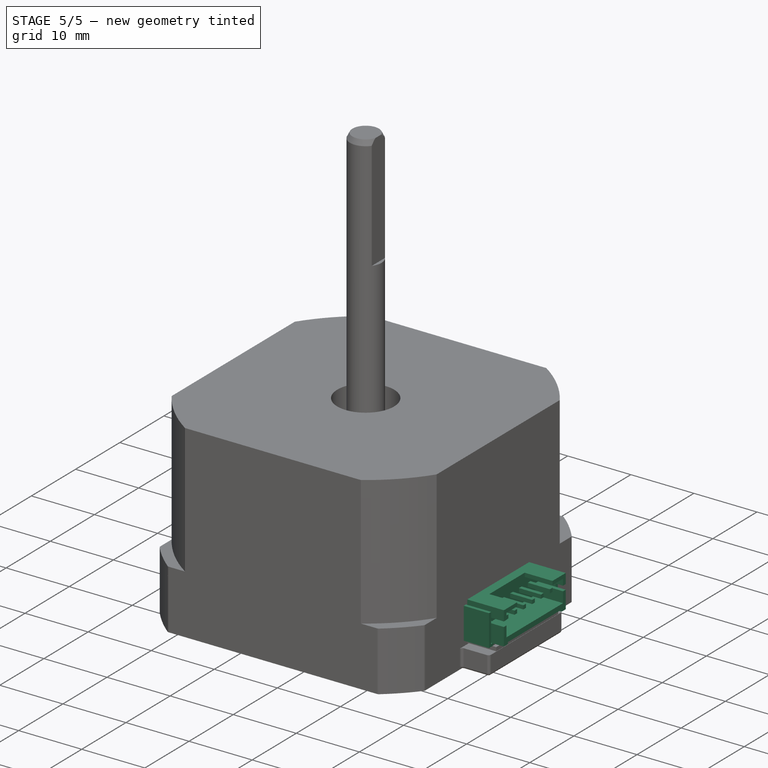
[diagram: stage 5 of 5 — iso view after this stage's code; geometry added in this stage tinted green]
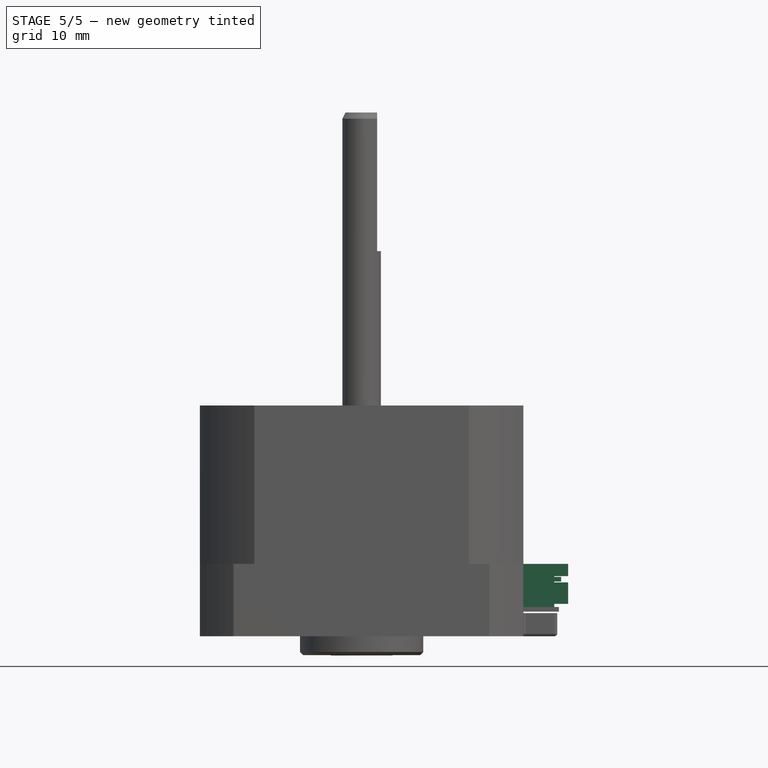
[diagram: stage 5 of 5 — front view after this stage's code; geometry added in this stage tinted green]
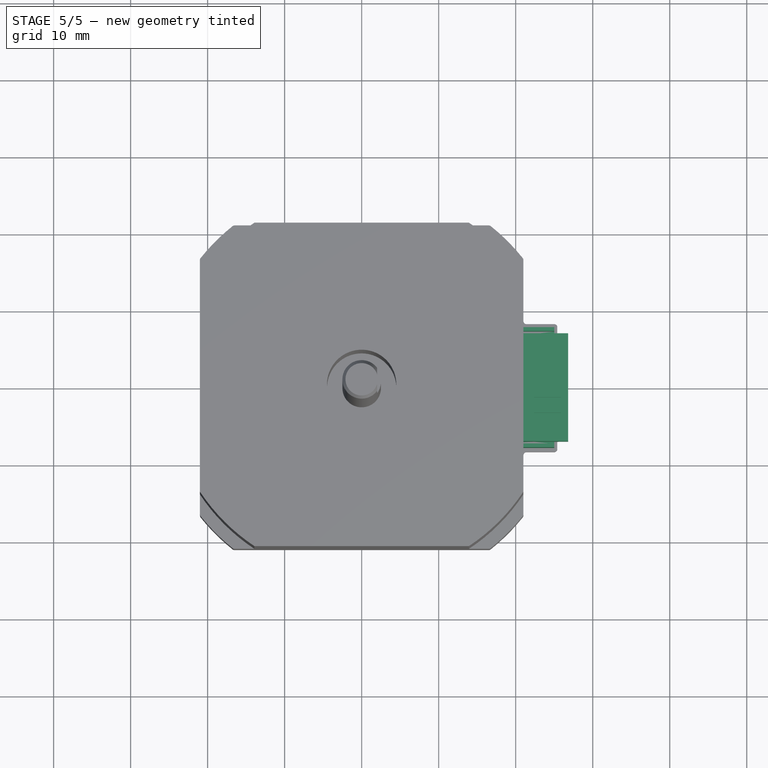
[diagram: stage 5 of 5 — top view after this stage's code; geometry added in this stage tinted green]
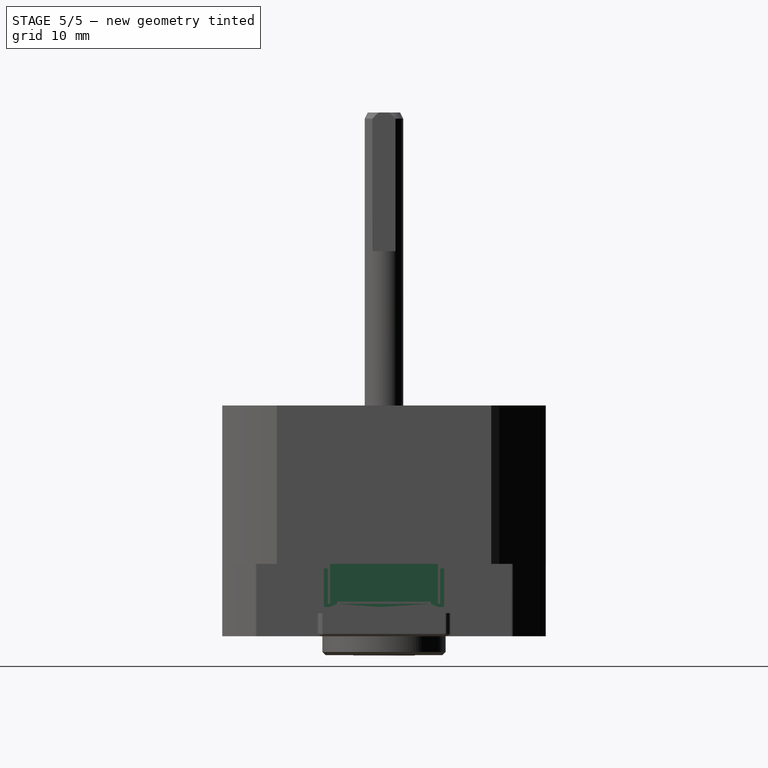
[diagram: stage 5 of 5 — right view after this stage's code; geometry added in this stage tinted green]
FEATURE [Sketcher::SketchObject] Sketch005
  ArcFitTolerance = 0
  AttachmentSupport = -> [XZ_Plane002]
  ExternalTypes = [0]
  FullyConstrained = true
  MakeInternals = false
  MapMode = 5
  Placement = pos=(0,0,0) rot=(1,0,0;1.5708rad)
  sketch-geometry (12):
    g0: LineSegment StartX=2.5 StartY=2.55 StartZ=0 EndX=8 EndY=2.55 EndZ=0
    g1: LineSegment StartX=8 StartY=2.55 StartZ=0 EndX=8 EndY=-2.45 EndZ=0
    g2: LineSegment StartX=8 StartY=-2.45 StartZ=0 EndX=6.5 EndY=-2.45 EndZ=0
    g3: LineSegment StartX=2.5 StartY=-2.5 StartZ=0 EndX=2.5 EndY=2.55 EndZ=0
    g4: LineSegment StartX=4.2 StartY=-2.45 StartZ=0 EndX=4.1 EndY=-1.95 EndZ=0
    g5: LineSegment StartX=4.1 StartY=-1.95 StartZ=0 EndX=4 EndY=-2.5 EndZ=0
    g6: LineSegment StartX=5.2 StartY=-2.45 StartZ=0 EndX=6.13734 EndY=-1.97682 EndZ=0
    g7: LineSegment StartX=6.5 StartY=-2.2 StartZ=0 EndX=6.5 EndY=-2.45 EndZ=0
    g8: LineSegment StartX=4 StartY=-2.5 StartZ=0 EndX=2.5 EndY=-2.5 EndZ=0
    g9: LineSegment StartX=5.2 StartY=-2.45 StartZ=0 EndX=4.2 EndY=-2.45 EndZ=0
    g10: ArcOfCircle CenterX=6.25 CenterY=-2.2 CenterZ=0 NormalX=0 NormalY=0 NormalZ=1 AngleXU=0 Radius=0.25 StartAngle=2.03828 EndAngle=6.28319
    g11: LineSegment [constr] StartX=6.5 StartY=-2.45 StartZ=0 EndX=5.2 EndY=-2.45 EndZ=0
  constraints (34):
    c: Coincident(g0,g1)
    c: Coincident(g1,g2)
    c: Coincident(g8,g3)
    c: Coincident(g3,g0)
    c: Horizontal(g0)
    c: Horizontal(g2)
    c: Vertical(g1)
    c: Vertical(g3)
    c: Coincident(g5,g4)
    c: DistanceX(g-1,g8) = 2.5
    c: DistanceX(g-1,g1) = 8
    c: DistanceY(g1,g1) = 5
    c: DistanceY(g8,g-1) = 2.5
    c: Coincident(g9,g4)
    c: Coincident(g8,g5)
    c: Coincident(g9,g6)
    c: Coincident(g2,g7)
    c: Horizontal(g9)
    c: Horizontal(g8)
    c: Vertical(g7)
    c: Horizontal(g6,g2)
    c: DistanceX(g5,g4) = 0.2
    c: Coincident(g11,g2)
    c: Coincident(g11,g6)
    c: Diameter(g10) = 0.5
    c: DistanceX(g2,g2) = 1.5
    c: Tangent(g10,g11)
    c: DistanceX(g4,g4) = 0.1
    c: DistanceX(g8,g8) = 1.5
    c: DistanceX(g9,g9) = 1
    c: Tangent(g7,g10) = 1.5708
    c: Tangent(g6,g10) = 1.5708
    c: DistanceY(g4,g4) = 0.5
    c: DistanceY(g5,g4) = 0.05
FEATURE [PartDesign::Revolution] Revolution
  Angle = 360
  Angle2 = 60
  Axis = (0,2e-16,1)
  Base = (0,0,0)
  Placement = pos=(0,0,0) rot=(1,0,0;1.5708rad)
  Profile = -> Sketch005
  ReferenceAxis = -> Sketch005 [V_Axis]
  Reversed = true
  Suppressed = false
  Type = 0
FEATURE [PartDesign::Chamfer] Chamfer
  Angle = 45
  Base = -> Revolution [Edge11,Edge7]
  BaseFeature = -> Revolution
  ChamferType = 0
  FlipDirection = false
  Placement = pos=(0,0,0) rot=(1,0,0;1.5708rad)
  Size = 0.4
  Size2 = 1
  SupportTransform = false
  Suppressed = false
  UseAllEdges = false
FEATURE [Sketcher::SketchObject] Sketch007
  ArcFitTolerance = 0
  AttachmentOffset = pos=(0,0,16) rot=(0,0,1;0rad)
  AttachmentSupport = -> [YZ_Plane003]
  ExternalTypes = [0]
  FullyConstrained = true
  MakeInternals = false
  MapMode = 5
  Placement = pos=(16,0,0) rot=(0.57735,0.57735,0.57735;2.0944rad)
  sketch-geometry (11):
    g0: LineSegment StartX=7.8 StartY=8.8 StartZ=0 EndX=7.8 EndY=3.8 EndZ=0
    g1: LineSegment StartX=7.8 StartY=3.8 StartZ=0 EndX=0.5 EndY=3.8 EndZ=0
    g2: LineSegment StartX=-7.8 StartY=3.8 StartZ=0 EndX=-7.8 EndY=8.8 EndZ=0
    g3: LineSegment StartX=7.3 StartY=8.8 StartZ=0 EndX=7.3 EndY=4.2 EndZ=0
    g4: LineSegment StartX=7.3 StartY=4.2 StartZ=0 EndX=-7.3 EndY=4.2 EndZ=0
    g5: LineSegment StartX=-7.3 StartY=4.2 StartZ=0 EndX=-7.3 EndY=8.8 EndZ=0
    g6: LineSegment StartX=7.3 StartY=8.8 StartZ=0 EndX=7.8 EndY=8.8 EndZ=0
    g7: LineSegment StartX=-7.3 StartY=8.8 StartZ=0 EndX=-7.8 EndY=8.8 EndZ=0
    g8: LineSegment StartX=-0.5 StartY=3.8 StartZ=0 EndX=1e-16 EndY=3.4 EndZ=0
    g9: LineSegment StartX=1e-16 StartY=3.4 StartZ=0 EndX=0.5 EndY=3.8 EndZ=0
    g10: LineSegment StartX=-0.5 StartY=3.8 StartZ=0 EndX=-7.8 EndY=3.8 EndZ=0
  constraints (33):
    c: Coincident(g0,g1)
    c: Coincident(g10,g2)
    c: Horizontal(g1)
    c: Vertical(g0)
    c: Vertical(g2)
    c: Coincident(g3,g4)
    c: Coincident(g4,g5)
    c: Horizontal(g4)
    c: Vertical(g3)
    c: Vertical(g5)
    c: DistanceX(g10,g0) = 15.6
    c: DistanceX(g-1,g0) = 7.8
    c: DistanceY(g-1,g0) = 3.8
    c: DistanceY(g10,g4) = 0.4
    c: DistanceX(g2,g5) = 0.5
    c: DistanceX(g3,g0) = 0.5
    c: Horizontal(g5,g3)
    c: DistanceY(g0,g0) = 5
    c: Coincident(g6,g3)
    c: Coincident(g6,g0)
    c: Coincident(g7,g5)
    c: Coincident(g7,g2)
    c: Horizontal(g7)
    c: Horizontal(g6)
    c: PointOnObject(g8,g-2)
    c: Coincident(g9,g8)
    c: DistanceX(g8,g9) = 1
    c: DistanceX(g-1,g9) = 0.5
    c: DistanceY(g8,g9) = 0.4
    c: Coincident(g1,g9)
    c: Coincident(g10,g8)
    c: Horizontal(g8,g1)
    c: Horizontal(g10)
FEATURE [PartDesign::Pad] Pad002  label="shell"
  BaseFeature = -> Pad001
  Direction = (1,0,0)
  Length = 9
  Length2 = 10
  Placement = pos=(0,0,0) rot=(1,1,1;2.0944rad)
  Profile = -> Sketch007
  ReferenceAxis = -> Sketch007 [N_Axis]
  Suppressed = false
  Type = 0
FEATURE [Sketcher::SketchObject] Sketch008
  ArcFitTolerance = 0
  AttachmentOffset = pos=(0,0,16) rot=(0,0,1;0rad)
  AttachmentSupport = -> [YZ_Plane003]
  ExternalTypes = [0]
  FullyConstrained = true
  MakeInternals = false
  MapMode = 5
  Placement = pos=(16,0,0) rot=(0.57735,0.57735,0.57735;2.0944rad)
  sketch-geometry (8):
    g0: LineSegment StartX=-7 StartY=9.4 StartZ=0 EndX=7 EndY=9.4 EndZ=0
    g1: LineSegment StartX=7 StartY=9.4 StartZ=0 EndX=7 EndY=4.2 EndZ=0
    g2: LineSegment StartX=7 StartY=4.2 StartZ=0 EndX=6.1 EndY=4.2 EndZ=0
    g3: LineSegment StartX=-7 StartY=4.2 StartZ=0 EndX=-7 EndY=9.4 EndZ=0
    g4: LineSegment StartX=-6.1 StartY=4.2 StartZ=0 EndX=-6.1 EndY=4.5 EndZ=0
    g5: LineSegment StartX=-6.1 StartY=4.5 StartZ=0 EndX=6.1 EndY=4.5 EndZ=0
    g6: LineSegment StartX=6.1 StartY=4.5 StartZ=0 EndX=6.1 EndY=4.2 EndZ=0
    g7: LineSegment StartX=-6.1 StartY=4.2 StartZ=0 EndX=-7 EndY=4.2 EndZ=0
  constraints (24):
    c: Coincident(g0,g1)
    c: Coincident(g1,g2)
    c: Coincident(g7,g3)
    c: Coincident(g3,g0)
    c: Horizontal(g0)
    c: Horizontal(g2)
    c: Vertical(g1)
    c: Vertical(g3)
    c: DistanceX(g0,g0) = 14
    c: Vertical(g4)
    c: Coincident(g5,g4)
    c: Horizontal(g5)
    c: Coincident(g6,g5)
    c: Vertical(g6)
    c: Coincident(g2,g6)
    c: Coincident(g7,g4)
    c: DistanceY(g3,g3) = 5.2
    c: Horizontal(g7)
    c: Horizontal(g4,g2)
    c: DistanceY(g-1,g4) = 4.2
    c: DistanceX(g-1,g0) = 7
    c: DistanceY(g4,g4) = 0.3
    c: DistanceX(g7,g7) = 0.9
    c: DistanceX(g2,g2) = 0.9
FEATURE [PartDesign::Pad] Pad003  label="connectorBase"
  BaseFeature = -> Pad002
  Direction = (1,0,0)
  Length = 6.4
  Length2 = 10
  Placement = pos=(0,0,0) rot=(1,1,1;2.0944rad)
  Profile = -> Sketch008
  ReferenceAxis = -> Sketch008 [N_Axis]
  Suppressed = false
  Type = 0
FEATURE [Sketcher::SketchObject] Sketch009
  ArcFitTolerance = 0
  AttachmentSupport = -> [Pad003]
  ExternalTypes = [0]
  FullyConstrained = true
  MakeInternals = false
  MapMode = 5
  Placement = pos=(22.4,0,0) rot=(0.57735,0.57735,0.57735;2.0944rad)
  sketch-geometry (24):
    g0: LineSegment StartX=-7 StartY=9.4 StartZ=0 EndX=-4 EndY=9.4 EndZ=0
    g1: LineSegment StartX=-4 StartY=9.4 StartZ=0 EndX=-4 EndY=8.8 EndZ=0
    g2: LineSegment StartX=-4 StartY=8.8 StartZ=0 EndX=-6.4 EndY=8.8 EndZ=0
    g3: LineSegment StartX=-6.4 StartY=8.8 StartZ=0 EndX=-6.4 EndY=7.8 EndZ=0
    g4: LineSegment StartX=-6.4 StartY=7.8 StartZ=0 EndX=-7 EndY=7.8 EndZ=0
    g5: LineSegment StartX=-7 StartY=7.8 StartZ=0 EndX=-7 EndY=9.4 EndZ=0
    g6: LineSegment StartX=4 StartY=9.4 StartZ=0 EndX=7 EndY=9.4 EndZ=0
    g7: LineSegment StartX=7 StartY=9.4 StartZ=0 EndX=7 EndY=7.8 EndZ=0
    g8: LineSegment StartX=7 StartY=7.8 StartZ=0 EndX=6.4 EndY=7.8 EndZ=0
    g9: LineSegment StartX=6.4 StartY=7.8 StartZ=0 EndX=6.4 EndY=8.8 EndZ=0
    g10: LineSegment StartX=6.4 StartY=8.8 StartZ=0 EndX=4 EndY=8.8 EndZ=0
    g11: LineSegment StartX=4 StartY=8.8 StartZ=0 EndX=4 EndY=9.4 EndZ=0
    g12: LineSegment StartX=7 StartY=7 StartZ=0 EndX=7 EndY=4.2 EndZ=0
    g13: LineSegment StartX=7 StartY=4.2 StartZ=0 EndX=6.1 EndY=4.2 EndZ=0
    g14: LineSegment StartX=6.1 StartY=4.2 StartZ=0 EndX=6.1 EndY=4.5 EndZ=0
    g15: LineSegment StartX=6.1 StartY=4.5 StartZ=0 EndX=-6.1 EndY=4.5 EndZ=0
    g16: LineSegment StartX=-6.1 StartY=4.5 StartZ=0 EndX=-6.1 EndY=4.2 EndZ=0
    g17: LineSegment StartX=-6.1 StartY=4.2 StartZ=0 EndX=-7 EndY=4.2 EndZ=0
    g18: LineSegment StartX=-7 StartY=4.2 StartZ=0 EndX=-7 EndY=7 EndZ=0
    g19: LineSegment StartX=-7 StartY=7 StartZ=0 EndX=-6.4 EndY=7 EndZ=0
    g20: LineSegment StartX=-6.4 StartY=7 StartZ=0 EndX=-6.4 EndY=5.3 EndZ=0
    g21: LineSegment StartX=-6.4 StartY=5.3 StartZ=0 EndX=6.4 EndY=5.3 EndZ=0
    g22: LineSegment StartX=6.4 StartY=5.3 StartZ=0 EndX=6.4 EndY=7 EndZ=0
    g23: LineSegment StartX=6.4 StartY=7 StartZ=0 EndX=7 EndY=7 EndZ=0
  constraints (72):
    c: Horizontal(g0)
    c: Coincident(g0,g1)
    c: Coincident(g1,g2)
    c: Horizontal(g2)
    c: Coincident(g2,g3)
    c: Vertical(g3)
    c: Coincident(g3,g4)
    c: Coincident(g4,g5)
    c: Coincident(g5,g0)
    c: Vertical(g5)
    c: Horizontal(g6)
    c: Coincident(g6,g7)
    c: Vertical(g7)
    c: Coincident(g7,g8)
    c: Horizontal(g8)
    c: Coincident(g8,g9)
    c: Vertical(g9)
    c: Coincident(g9,g10)
    c: Horizontal(g10)
    c: Coincident(g10,g11)
    c: Coincident(g11,g6)
    c: Vertical(g12)
    c: Coincident(g12,g13)
    c: Coincident(g13,g14)
    c: Coincident(g14,g15)
    c: Horizontal(g15)
    c: Coincident(g15,g16)
    c: Coincident(g16,g17)
    c: Coincident(g17,g18)
    c: Vertical(g18)
    c: Coincident(g18,g19)
    c: Horizontal(g19)
    c: Coincident(g19,g20)
    c: Vertical(g20)
    c: Coincident(g20,g21)
    c: Horizontal(g21)
    c: Coincident(g21,g22)
    c: Vertical(g22)
    c: Coincident(g22,g23)
    c: Coincident(g23,g12)
    c: Vertical(g14)
    c: Vertical(g11)
    c: Vertical(g1)
    c: Vertical(g16)
    c: Horizontal(g17)
    c: Horizontal(g13)
    c: Horizontal(g23)
    c: Horizontal(g4)
    c: DistanceY(g15,g20) = 0.8
    c: DistanceX(g17,g17) = 0.9
    c: DistanceX(g13,g13) = 0.9
    c: DistanceX(g17,g12) = 14
    c: DistanceX(g-1,g12) = 7
    c: DistanceY(g16,g16) = 0.3
    c: DistanceY(g-1,g16) = 4.2
    c: Horizontal(g19,g22)
    c: DistanceX(g23,g23) = 0.6
    c: DistanceX(g19,g19) = 0.6
    c: DistanceY(g18,g18) = 2.8
    c: Horizontal(g16,g13)
    c: Vertical(g8,g22)
    c: Vertical(g19,g3)
    c: Vertical(g4,g18)
    c: Vertical(g7,g12)
    c: Horizontal(g0,g6)
    c: Horizontal(g1,g10)
    c: DistanceY(g12,g6) = 5.2
    c: DistanceY(g7,g7) = 1.6
    c: Horizontal(g3,g8)
    c: DistanceY(g1,g1) = 0.6
    c: DistanceX(g0,g6) = 8
    c: DistanceX(g-1,g6) = 4
FEATURE [PartDesign::Pad] Pad004  label="connectorShell"
  BaseFeature = -> Pad003
  Direction = (1,0,0)
  Length = 4.4
  Length2 = 10
  Placement = pos=(0,0,0) rot=(1,1,1;2.0944rad)
  Profile = -> Sketch009
  ReferenceAxis = -> Sketch009 [N_Axis]
  Suppressed = false
  Type = 0
FEATURE [Sketcher::SketchObject] Sketch010
  ArcFitTolerance = 0
  AttachmentSupport = -> [Pad004]
  ExternalTypes = [0]
  FullyConstrained = true
  MakeInternals = false
  MapMode = 5
  Placement = pos=(22.4,0,0) rot=(0.57735,0.57735,0.57735;2.0944rad)
  sketch-geometry (24):
    g0: LineSegment StartX=-5.3 StartY=7.7 StartZ=0 EndX=-4.7 EndY=7.7 EndZ=0
    g1: LineSegment StartX=-4.7 StartY=7.7 StartZ=0 EndX=-4.7 EndY=7.1 EndZ=0
    g2: LineSegment StartX=-4.7 StartY=7.1 StartZ=0 EndX=-5.3 EndY=7.1 EndZ=0
    g3: LineSegment StartX=-5.3 StartY=7.1 StartZ=0 EndX=-5.3 EndY=7.7 EndZ=0
    g4: LineSegment StartX=-3.3 StartY=7.7 StartZ=0 EndX=-2.7 EndY=7.7 EndZ=0
    g5: LineSegment StartX=-2.7 StartY=7.7 StartZ=0 EndX=-2.7 EndY=7.1 EndZ=0
    g6: LineSegment StartX=-2.7 StartY=7.1 StartZ=0 EndX=-3.3 EndY=7.1 EndZ=0
    g7: LineSegment StartX=-3.3 StartY=7.1 StartZ=0 EndX=-3.3 EndY=7.7 EndZ=0
    g8: LineSegment StartX=-1.3 StartY=7.7 StartZ=0 EndX=-0.7 EndY=7.7 EndZ=0
    g9: LineSegment StartX=-0.7 StartY=7.7 StartZ=0 EndX=-0.7 EndY=7.1 EndZ=0
    g10: LineSegment StartX=-0.7 StartY=7.1 StartZ=0 EndX=-1.3 EndY=7.1 EndZ=0
    g11: LineSegment StartX=-1.3 StartY=7.1 StartZ=0 EndX=-1.3 EndY=7.7 EndZ=0
    g12: LineSegment StartX=0.7 StartY=7.7 StartZ=0 EndX=1.3 EndY=7.7 EndZ=0
    g13: LineSegment StartX=1.3 StartY=7.7 StartZ=0 EndX=1.3 EndY=7.1 EndZ=0
    g14: LineSegment StartX=1.3 StartY=7.1 StartZ=0 EndX=0.7 EndY=7.1 EndZ=0
    g15: LineSegment StartX=0.7 StartY=7.1 StartZ=0 EndX=0.7 EndY=7.7 EndZ=0
    g16: LineSegment StartX=2.7 StartY=7.7 StartZ=0 EndX=3.3 EndY=7.7 EndZ=0
    g17: LineSegment StartX=3.3 StartY=7.7 StartZ=0 EndX=3.3 EndY=7.1 EndZ=0
    g18: LineSegment StartX=3.3 StartY=7.1 StartZ=0 EndX=2.7 EndY=7.1 EndZ=0
    g19: LineSegment StartX=2.7 StartY=7.1 StartZ=0 EndX=2.7 EndY=7.7 EndZ=0
    g20: LineSegment StartX=4.7 StartY=7.7 StartZ=0 EndX=5.3 EndY=7.7 EndZ=0
    g21: LineSegment StartX=5.3 StartY=7.7 StartZ=0 EndX=5.3 EndY=7.1 EndZ=0
    g22: LineSegment StartX=5.3 StartY=7.1 StartZ=0 EndX=4.7 EndY=7.1 EndZ=0
    g23: LineSegment StartX=4.7 StartY=7.1 StartZ=0 EndX=4.7 EndY=7.7 EndZ=0
  constraints (72):
    c: Coincident(g0,g1)
    c: Coincident(g1,g2)
    c: Coincident(g2,g3)
    c: Coincident(g3,g0)
    c: Horizontal(g0)
    c: Horizontal(g2)
    c: Vertical(g1)
    c: Vertical(g3)
    c: Coincident(g4,g5)
    c: Coincident(g5,g6)
    c: Coincident(g6,g7)
    c: Coincident(g7,g4)
    c: Horizontal(g4)
    c: Horizontal(g6)
    c: Vertical(g5)
    c: Vertical(g7)
    c: Coincident(g8,g9)
    c: Coincident(g9,g10)
    c: Coincident(g10,g11)
    c: Coincident(g11,g8)
    c: Horizontal(g8)
    c: Horizontal(g10)
    c: Vertical(g9)
    c: Vertical(g11)
    c: Coincident(g12,g13)
    c: Coincident(g13,g14)
    c: Coincident(g14,g15)
    c: Coincident(g15,g12)
    c: Horizontal(g12)
    c: Horizontal(g14)
    c: Vertical(g13)
    c: Vertical(g15)
    c: Coincident(g16,g17)
    c: Coincident(g17,g18)
    c: Coincident(g18,g19)
    c: Coincident(g19,g16)
    c: Horizontal(g16)
    c: Horizontal(g18)
    c: Vertical(g17)
    c: Vertical(g19)
    c: Coincident(g20,g21)
    c: Coincident(g21,g22)
    c: Coincident(g22,g23)
    c: Coincident(g23,g20)
    c: Horizontal(g20)
    c: Horizontal(g22)
    c: Vertical(g21)
    c: Vertical(g23)
    c: Horizontal(g0,g4)
    c: Horizontal(g4,g8)
    c: Horizontal(g8,g12)
    c: Horizontal(g12,g16)
    c: Horizontal(g16,g20)
    c: Horizontal(g1,g6)
    c: Horizontal(g5,g10)
    c: Horizontal(g9,g14)
    c: Horizontal(g13,g18)
    c: Horizontal(g17,g22)
    c: Equal(g2,g6)
    c: Equal(g6,g10)
    c: Equal(g10,g14)
    c: Equal(g14,g18)
    c: Equal(g18,g22)
    c: DistanceX(g0,g0) = 0.6
    c: DistanceY(g3,g3) = 0.6
    c: Distance(g0,g4) = 2
    c: Distance(g4,g8) = 2
    c: Distance(g8,g12) = 2
    c: Distance(g12,g16) = 2
    c: Distance(g16,g20) = 2
    c: DistanceX(g-1,g14) = 0.7
    c: DistanceY(g-1,g14) = 7.1
FEATURE [PartDesign::Pad] Pad005  label="connectorPins"
  BaseFeature = -> Pad004
  Direction = (1,0,0)
  Length = 3.5
  Length2 = 10
  Placement = pos=(0,0,0) rot=(1,1,1;2.0944rad)
  Profile = -> Sketch010
  ReferenceAxis = -> Sketch010 [N_Axis]
  Suppressed = false
  Type = 0
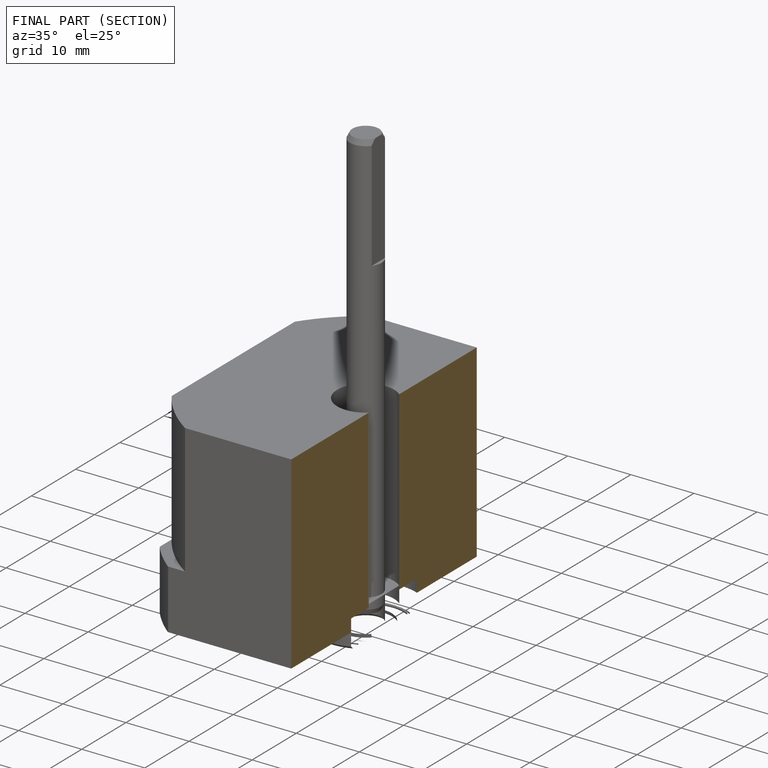
[diagram: finished part — half-section view (interior)]
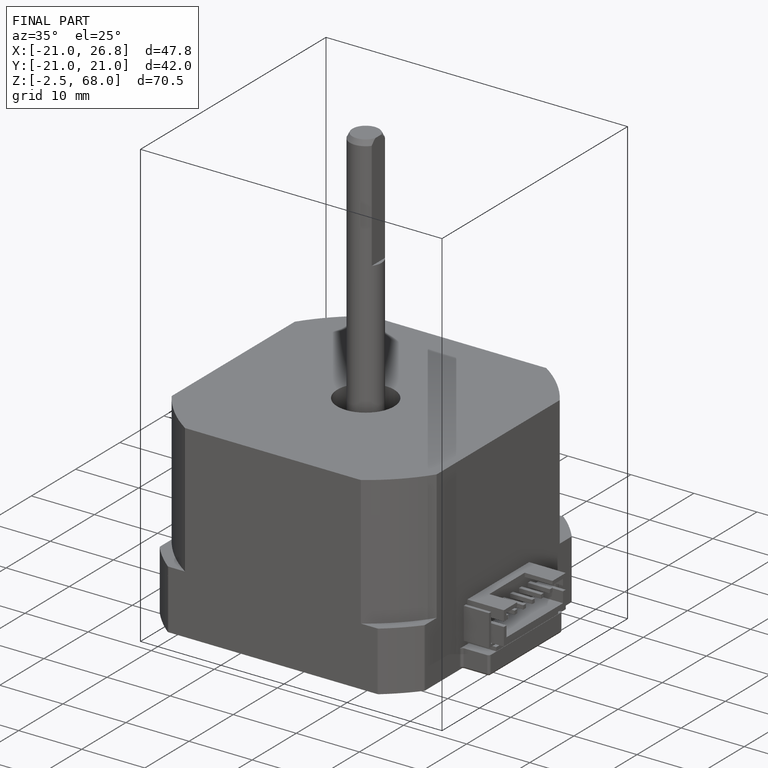
[diagram: finished part — iso view with bounding-box wireframe]
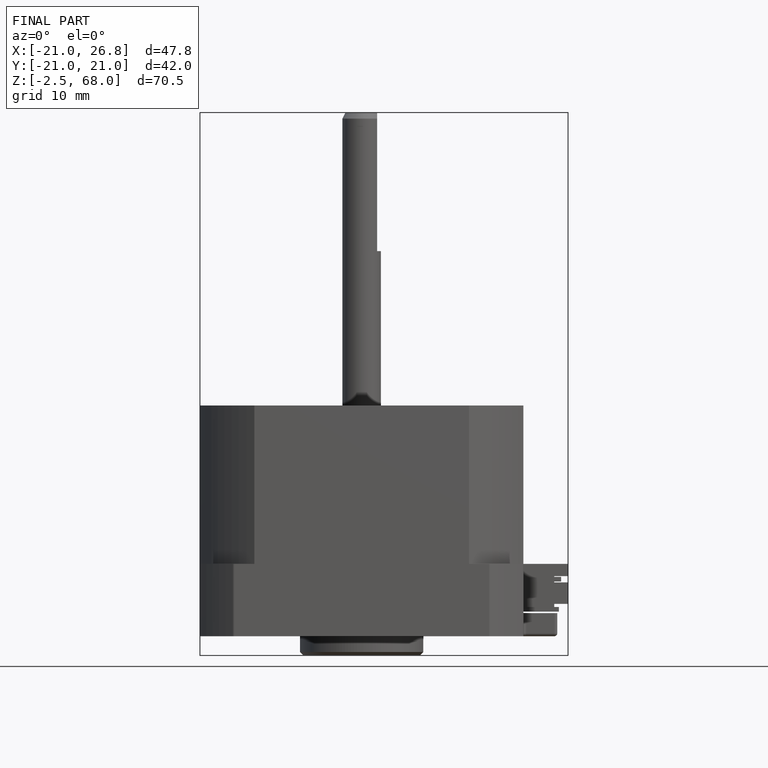
[diagram: finished part — front view with bounding-box wireframe]
